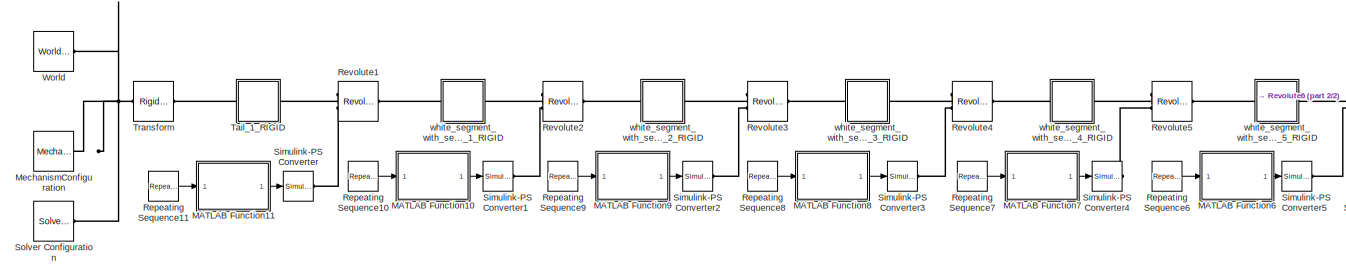
[diagram: root canvas - part 1/2, left side, full height]
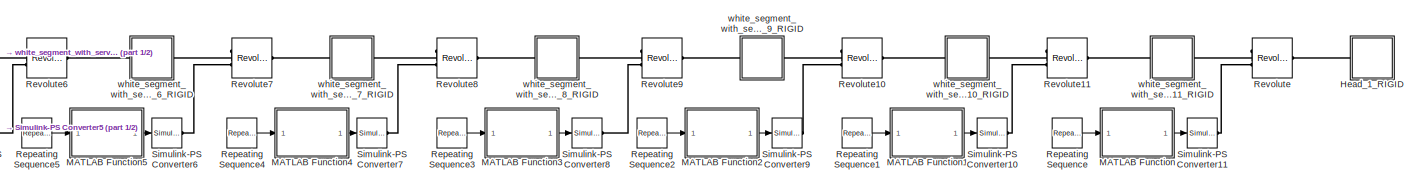
[diagram: root canvas - part 2/2, middle right region]
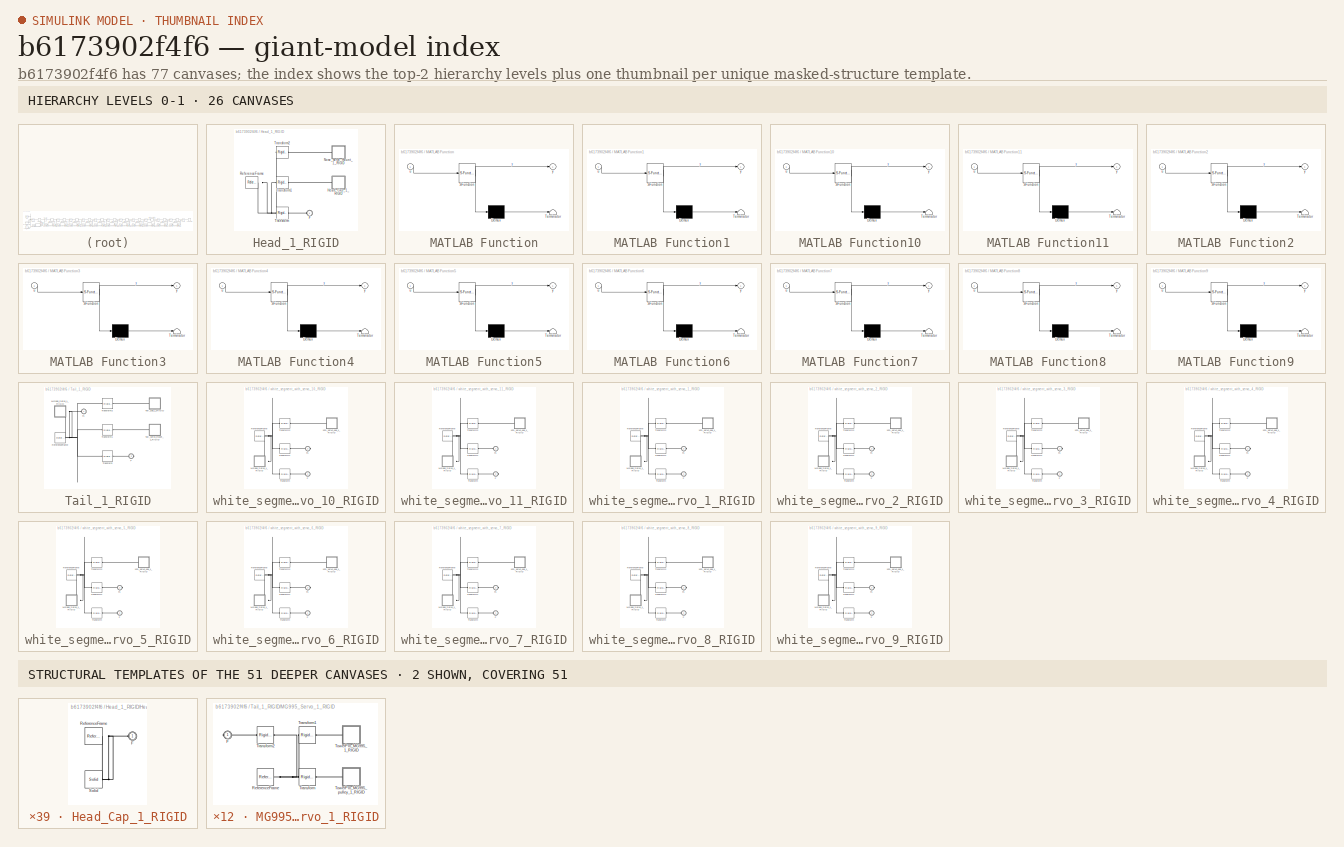
[diagram: thumbnail index - top-2 hierarchy levels (26 canvases) + 2 structural-template representatives of the remaining 51 canvases]
MODEL slx_b6173902f4f6
KIND model
CONFIG AbsTol = auto
CONFIG EnableMultiTasking = off
CONFIG FixedStep = auto
CONFIG MaxStep = auto
CONFIG MinStep = auto
CONFIG RelTol = 1e-3
CONFIG SampleTimeConstraint = Unconstrained
CONFIG Solver = VariableStepAuto
CONFIG SolverName = VariableStepAuto
CONFIG StartTime = 0.0
CONFIG StopTime = 10
WORKSPACE source: external: MATLAB File  (data not in archive)
BLOCK [SubSystem] Head_1_RIGID
  Ports = [0, 0, 0, 0, 0, 1]
  RequestExecContextInheritance = off
  Variant = off
BLOCK [PMIOPort] Head_1_RIGID/F
  Port = 1
  Side = Left
BLOCK [SubSystem] Head_1_RIGID/Head_Cap_1_RIGID
  Ports = [0, 0, 0, 0, 0, 1]
  RequestExecContextInheritance = off
  Variant = off
BLOCK [PMIOPort] Head_1_RIGID/Head_Cap_1_RIGID/F
  Port = 1
  Side = Left
BLOCK [Reference] Head_1_RIGID/Head_Cap_1_RIGID/ReferenceFrame  REF=sm_lib/Frames and
Transforms/Reference
Frame
  Ports = [0, 0, 0, 0, 0, 0, 1]
  SourceBlock = sm_lib/Frames and\nTransforms/Reference\nFrame
  SourceProductBaseCode = MS
  SourceProductName = Simscape Multibody
  SourceType = Reference\nFrame
BLOCK [Reference] Head_1_RIGID/Head_Cap_1_RIGID/Solid  REF=sm_lib/Body Elements/Solid
  Ports = [0, 0, 0, 0, 0, 0, 1]
  SourceBlock = sm_lib/Body Elements/Solid
  SourceProductBaseCode = MS
  SourceProductName = Simscape Multibody
  SourceType = Solid
BLOCK [SubSystem] Head_1_RIGID/Nose_servo_mount_1_RIGID
  Ports = [0, 0, 0, 0, 0, 1]
  RequestExecContextInheritance = off
  Variant = off
BLOCK [PMIOPort] Head_1_RIGID/Nose_servo_mount_1_RIGID/F
  Port = 1
  Side = Left
BLOCK [Reference] Head_1_RIGID/Nose_servo_mount_1_RIGID/ReferenceFrame  REF=sm_lib/Frames and
Transforms/Reference
Frame
  Ports = [0, 0, 0, 0, 0, 0, 1]
  SourceBlock = sm_lib/Frames and\nTransforms/Reference\nFrame
  SourceProductBaseCode = MS
  SourceProductName = Simscape Multibody
  SourceType = Reference\nFrame
BLOCK [Reference] Head_1_RIGID/Nose_servo_mount_1_RIGID/Solid  REF=sm_lib/Body Elements/Solid
  Ports = [0, 0, 0, 0, 0, 0, 1]
  SourceBlock = sm_lib/Body Elements/Solid
  SourceProductBaseCode = MS
  SourceProductName = Simscape Multibody
  SourceType = Solid
BLOCK [Reference] Head_1_RIGID/ReferenceFrame  REF=sm_lib/Frames and
Transforms/Reference
Frame
  Ports = [0, 0, 0, 0, 0, 0, 1]
  SourceBlock = sm_lib/Frames and\nTransforms/Reference\nFrame
  SourceProductBaseCode = MS
  SourceProductName = Simscape Multibody
  SourceType = Reference\nFrame
BLOCK [Reference] Head_1_RIGID/Transform  REF=sm_lib/Frames and
Transforms/Rigid
Transform
  Ports = [0, 0, 0, 0, 0, 1, 1]
  SourceBlock = sm_lib/Frames and\nTransforms/Rigid\nTransform
  SourceProductBaseCode = MS
  SourceProductName = Simscape Multibody
  SourceType = Rigid\nTransform
BLOCK [Reference] Head_1_RIGID/Transform1  REF=sm_lib/Frames and
Transforms/Rigid
Transform
  Ports = [0, 0, 0, 0, 0, 1, 1]
  SourceBlock = sm_lib/Frames and\nTransforms/Rigid\nTransform
  SourceProductBaseCode = MS
  SourceProductName = Simscape Multibody
  SourceType = Rigid\nTransform
BLOCK [Reference] Head_1_RIGID/Transform2  REF=sm_lib/Frames and
Transforms/Rigid
Transform
  Ports = [0, 0, 0, 0, 0, 1, 1]
  SourceBlock = sm_lib/Frames and\nTransforms/Rigid\nTransform
  SourceProductBaseCode = MS
  SourceProductName = Simscape Multibody
  SourceType = Rigid\nTransform
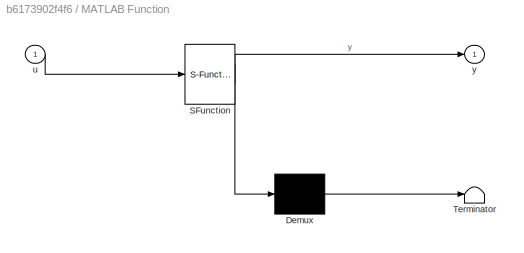
BLOCK [SubSystem] MATLAB Function
  ErrorFcn = Stateflow.Translate.translate
  PermitHierarchicalResolution = ExplicitOnly
  Ports = [1, 1]
  RequestExecContextInheritance = off
  SFBlockType = MATLAB Function
  TreatAsAtomicUnit = on
  Variant = off
BLOCK [Demux] MATLAB Function/ Demux 
  Outputs = 1
  Ports = [1, 1]
BLOCK [S-Function] MATLAB Function/ SFunction 
  EnableBusSupport = on
  FunctionName = sf_sfun
  PortCounts = [1 2]
  Ports = [1, 2]
  SFcnIsStateOwnerBlock = off
  SFunctionDeploymentMode = off
  Tag = Stateflow S-Function WhiteSnake 2
BLOCK [Terminator] MATLAB Function/ Terminator 
BLOCK [Inport] MATLAB Function/u
  IconDisplay = Port number
BLOCK [Outport] MATLAB Function/y
  IconDisplay = Port number
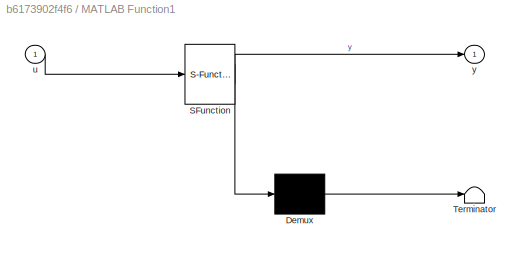
BLOCK [SubSystem] MATLAB Function1
  ErrorFcn = Stateflow.Translate.translate
  PermitHierarchicalResolution = ExplicitOnly
  Ports = [1, 1]
  RequestExecContextInheritance = off
  SFBlockType = MATLAB Function
  TreatAsAtomicUnit = on
  Variant = off
BLOCK [Demux] MATLAB Function1/ Demux 
  Outputs = 1
  Ports = [1, 1]
BLOCK [S-Function] MATLAB Function1/ SFunction 
  EnableBusSupport = on
  FunctionName = sf_sfun
  PortCounts = [1 2]
  Ports = [1, 2]
  SFcnIsStateOwnerBlock = off
  SFunctionDeploymentMode = off
  Tag = Stateflow S-Function WhiteSnake 1
BLOCK [Terminator] MATLAB Function1/ Terminator 
BLOCK [Inport] MATLAB Function1/u
  IconDisplay = Port number
BLOCK [Outport] MATLAB Function1/y
  IconDisplay = Port number
BLOCK [SubSystem] MATLAB Function10
  ErrorFcn = Stateflow.Translate.translate
  PermitHierarchicalResolution = ExplicitOnly
  Ports = [1, 1]
  RequestExecContextInheritance = off
  SFBlockType = MATLAB Function
  TreatAsAtomicUnit = on
  Variant = off
BLOCK [Demux] MATLAB Function10/ Demux 
  Outputs = 1
  Ports = [1, 1]
BLOCK [S-Function] MATLAB Function10/ SFunction 
  EnableBusSupport = on
  FunctionName = sf_sfun
  PortCounts = [1 2]
  Ports = [1, 2]
  SFcnIsStateOwnerBlock = off
  SFunctionDeploymentMode = off
  Tag = Stateflow S-Function WhiteSnake 11
BLOCK [Terminator] MATLAB Function10/ Terminator 
BLOCK [Inport] MATLAB Function10/u
  IconDisplay = Port number
BLOCK [Outport] MATLAB Function10/y
  IconDisplay = Port number
BLOCK [SubSystem] MATLAB Function11
  ErrorFcn = Stateflow.Translate.translate
  PermitHierarchicalResolution = ExplicitOnly
  Ports = [1, 1]
  RequestExecContextInheritance = off
  SFBlockType = MATLAB Function
  TreatAsAtomicUnit = on
  Variant = off
BLOCK [Demux] MATLAB Function11/ Demux 
  Outputs = 1
  Ports = [1, 1]
BLOCK [S-Function] MATLAB Function11/ SFunction 
  EnableBusSupport = on
  FunctionName = sf_sfun
  PortCounts = [1 2]
  Ports = [1, 2]
  SFcnIsStateOwnerBlock = off
  SFunctionDeploymentMode = off
  Tag = Stateflow S-Function WhiteSnake 12
BLOCK [Terminator] MATLAB Function11/ Terminator 
BLOCK [Inport] MATLAB Function11/u
  IconDisplay = Port number
BLOCK [Outport] MATLAB Function11/y
  IconDisplay = Port number
BLOCK [SubSystem] MATLAB Function2
  ErrorFcn = Stateflow.Translate.translate
  PermitHierarchicalResolution = ExplicitOnly
  Ports = [1, 1]
  RequestExecContextInheritance = off
  SFBlockType = MATLAB Function
  TreatAsAtomicUnit = on
  Variant = off
BLOCK [Demux] MATLAB Function2/ Demux 
  Outputs = 1
  Ports = [1, 1]
BLOCK [S-Function] MATLAB Function2/ SFunction 
  EnableBusSupport = on
  FunctionName = sf_sfun
  PortCounts = [1 2]
  Ports = [1, 2]
  SFcnIsStateOwnerBlock = off
  SFunctionDeploymentMode = off
  Tag = Stateflow S-Function WhiteSnake 3
BLOCK [Terminator] MATLAB Function2/ Terminator 
BLOCK [Inport] MATLAB Function2/u
  IconDisplay = Port number
BLOCK [Outport] MATLAB Function2/y
  IconDisplay = Port number
BLOCK [SubSystem] MATLAB Function3
  ErrorFcn = Stateflow.Translate.translate
  PermitHierarchicalResolution = ExplicitOnly
  Ports = [1, 1]
  RequestExecContextInheritance = off
  SFBlockType = MATLAB Function
  TreatAsAtomicUnit = on
  Variant = off
BLOCK [Demux] MATLAB Function3/ Demux 
  Outputs = 1
  Ports = [1, 1]
BLOCK [S-Function] MATLAB Function3/ SFunction 
  EnableBusSupport = on
  FunctionName = sf_sfun
  PortCounts = [1 2]
  Ports = [1, 2]
  SFcnIsStateOwnerBlock = off
  SFunctionDeploymentMode = off
  Tag = Stateflow S-Function WhiteSnake 4
BLOCK [Terminator] MATLAB Function3/ Terminator 
BLOCK [Inport] MATLAB Function3/u
  IconDisplay = Port number
BLOCK [Outport] MATLAB Function3/y
  IconDisplay = Port number
BLOCK [SubSystem] MATLAB Function4
  ErrorFcn = Stateflow.Translate.translate
  PermitHierarchicalResolution = ExplicitOnly
  Ports = [1, 1]
  RequestExecContextInheritance = off
  SFBlockType = MATLAB Function
  TreatAsAtomicUnit = on
  Variant = off
BLOCK [Demux] MATLAB Function4/ Demux 
  Outputs = 1
  Ports = [1, 1]
BLOCK [S-Function] MATLAB Function4/ SFunction 
  EnableBusSupport = on
  FunctionName = sf_sfun
  PortCounts = [1 2]
  Ports = [1, 2]
  SFcnIsStateOwnerBlock = off
  SFunctionDeploymentMode = off
  Tag = Stateflow S-Function WhiteSnake 5
BLOCK [Terminator] MATLAB Function4/ Terminator 
BLOCK [Inport] MATLAB Function4/u
  IconDisplay = Port number
BLOCK [Outport] MATLAB Function4/y
  IconDisplay = Port number
BLOCK [SubSystem] MATLAB Function5
  ErrorFcn = Stateflow.Translate.translate
  PermitHierarchicalResolution = ExplicitOnly
  Ports = [1, 1]
  RequestExecContextInheritance = off
  SFBlockType = MATLAB Function
  TreatAsAtomicUnit = on
  Variant = off
BLOCK [Demux] MATLAB Function5/ Demux 
  Outputs = 1
  Ports = [1, 1]
BLOCK [S-Function] MATLAB Function5/ SFunction 
  EnableBusSupport = on
  FunctionName = sf_sfun
  PortCounts = [1 2]
  Ports = [1, 2]
  SFcnIsStateOwnerBlock = off
  SFunctionDeploymentMode = off
  Tag = Stateflow S-Function WhiteSnake 6
BLOCK [Terminator] MATLAB Function5/ Terminator 
BLOCK [Inport] MATLAB Function5/u
  IconDisplay = Port number
BLOCK [Outport] MATLAB Function5/y
  IconDisplay = Port number
BLOCK [SubSystem] MATLAB Function6
  ErrorFcn = Stateflow.Translate.translate
  PermitHierarchicalResolution = ExplicitOnly
  Ports = [1, 1]
  RequestExecContextInheritance = off
  SFBlockType = MATLAB Function
  TreatAsAtomicUnit = on
  Variant = off
BLOCK [Demux] MATLAB Function6/ Demux 
  Outputs = 1
  Ports = [1, 1]
BLOCK [S-Function] MATLAB Function6/ SFunction 
  EnableBusSupport = on
  FunctionName = sf_sfun
  PortCounts = [1 2]
  Ports = [1, 2]
  SFcnIsStateOwnerBlock = off
  SFunctionDeploymentMode = off
  Tag = Stateflow S-Function WhiteSnake 7
BLOCK [Terminator] MATLAB Function6/ Terminator 
BLOCK [Inport] MATLAB Function6/u
  IconDisplay = Port number
BLOCK [Outport] MATLAB Function6/y
  IconDisplay = Port number
BLOCK [SubSystem] MATLAB Function7
  ErrorFcn = Stateflow.Translate.translate
  PermitHierarchicalResolution = ExplicitOnly
  Ports = [1, 1]
  RequestExecContextInheritance = off
  SFBlockType = MATLAB Function
  TreatAsAtomicUnit = on
  Variant = off
BLOCK [Demux] MATLAB Function7/ Demux 
  Outputs = 1
  Ports = [1, 1]
BLOCK [S-Function] MATLAB Function7/ SFunction 
  EnableBusSupport = on
  FunctionName = sf_sfun
  PortCounts = [1 2]
  Ports = [1, 2]
  SFcnIsStateOwnerBlock = off
  SFunctionDeploymentMode = off
  Tag = Stateflow S-Function WhiteSnake 8
BLOCK [Terminator] MATLAB Function7/ Terminator 
BLOCK [Inport] MATLAB Function7/u
  IconDisplay = Port number
BLOCK [Outport] MATLAB Function7/y
  IconDisplay = Port number
BLOCK [SubSystem] MATLAB Function8
  ErrorFcn = Stateflow.Translate.translate
  PermitHierarchicalResolution = ExplicitOnly
  Ports = [1, 1]
  RequestExecContextInheritance = off
  SFBlockType = MATLAB Function
  TreatAsAtomicUnit = on
  Variant = off
BLOCK [Demux] MATLAB Function8/ Demux 
  Outputs = 1
  Ports = [1, 1]
BLOCK [S-Function] MATLAB Function8/ SFunction 
  EnableBusSupport = on
  FunctionName = sf_sfun
  PortCounts = [1 2]
  Ports = [1, 2]
  SFcnIsStateOwnerBlock = off
  SFunctionDeploymentMode = off
  Tag = Stateflow S-Function WhiteSnake 9
BLOCK [Terminator] MATLAB Function8/ Terminator 
BLOCK [Inport] MATLAB Function8/u
  IconDisplay = Port number
BLOCK [Outport] MATLAB Function8/y
  IconDisplay = Port number
BLOCK [SubSystem] MATLAB Function9
  ErrorFcn = Stateflow.Translate.translate
  PermitHierarchicalResolution = ExplicitOnly
  Ports = [1, 1]
  RequestExecContextInheritance = off
  SFBlockType = MATLAB Function
  TreatAsAtomicUnit = on
  Variant = off
BLOCK [Demux] MATLAB Function9/ Demux 
  Outputs = 1
  Ports = [1, 1]
BLOCK [S-Function] MATLAB Function9/ SFunction 
  EnableBusSupport = on
  FunctionName = sf_sfun
  PortCounts = [1 2]
  Ports = [1, 2]
  SFcnIsStateOwnerBlock = off
  SFunctionDeploymentMode = off
  Tag = Stateflow S-Function WhiteSnake 10
BLOCK [Terminator] MATLAB Function9/ Terminator 
BLOCK [Inport] MATLAB Function9/u
  IconDisplay = Port number
BLOCK [Outport] MATLAB Function9/y
  IconDisplay = Port number
BLOCK [Reference] MechanismConfiguration  REF=sm_lib/Utilities/Mechanism
Configuration
  Ports = [0, 0, 0, 0, 0, 0, 1]
  SourceBlock = sm_lib/Utilities/Mechanism\nConfiguration
  SourceProductBaseCode = MS
  SourceProductName = Simscape Multibody
  SourceType = Mechanism\nConfiguration
BLOCK [Reference] Repeating Sequence  REF=simulink/Sources/Repeating
Sequence
  Ports = [0, 1]
  SourceBlock = simulink/Sources/Repeating\nSequence
  SourceProductBaseCode = SL
  SourceProductName = Simulink
  SourceType = Repeating table
BLOCK [Reference] Repeating Sequence1  REF=simulink/Sources/Repeating
Sequence
  Ports = [0, 1]
  SourceBlock = simulink/Sources/Repeating\nSequence
  SourceProductBaseCode = SL
  SourceProductName = Simulink
  SourceType = Repeating table
BLOCK [Reference] Repeating Sequence10  REF=simulink/Sources/Repeating
Sequence
  Ports = [0, 1]
  SourceBlock = simulink/Sources/Repeating\nSequence
  SourceProductBaseCode = SL
  SourceProductName = Simulink
  SourceType = Repeating table
BLOCK [Reference] Repeating Sequence11  REF=simulink/Sources/Repeating
Sequence
  Ports = [0, 1]
  SourceBlock = simulink/Sources/Repeating\nSequence
  SourceProductBaseCode = SL
  SourceProductName = Simulink
  SourceType = Repeating table
BLOCK [Reference] Repeating Sequence2  REF=simulink/Sources/Repeating
Sequence
  Ports = [0, 1]
  SourceBlock = simulink/Sources/Repeating\nSequence
  SourceProductBaseCode = SL
  SourceProductName = Simulink
  SourceType = Repeating table
BLOCK [Reference] Repeating Sequence3  REF=simulink/Sources/Repeating
Sequence
  Ports = [0, 1]
  SourceBlock = simulink/Sources/Repeating\nSequence
  SourceProductBaseCode = SL
  SourceProductName = Simulink
  SourceType = Repeating table
BLOCK [Reference] Repeating Sequence4  REF=simulink/Sources/Repeating
Sequence
  Ports = [0, 1]
  SourceBlock = simulink/Sources/Repeating\nSequence
  SourceProductBaseCode = SL
  SourceProductName = Simulink
  SourceType = Repeating table
BLOCK [Reference] Repeating Sequence5  REF=simulink/Sources/Repeating
Sequence
  Ports = [0, 1]
  SourceBlock = simulink/Sources/Repeating\nSequence
  SourceProductBaseCode = SL
  SourceProductName = Simulink
  SourceType = Repeating table
BLOCK [Reference] Repeating Sequence6  REF=simulink/Sources/Repeating
Sequence
  Ports = [0, 1]
  SourceBlock = simulink/Sources/Repeating\nSequence
  SourceProductBaseCode = SL
  SourceProductName = Simulink
  SourceType = Repeating table
BLOCK [Reference] Repeating Sequence7  REF=simulink/Sources/Repeating
Sequence
  Ports = [0, 1]
  SourceBlock = simulink/Sources/Repeating\nSequence
  SourceProductBaseCode = SL
  SourceProductName = Simulink
  SourceType = Repeating table
BLOCK [Reference] Repeating Sequence8  REF=simulink/Sources/Repeating
Sequence
  Ports = [0, 1]
  SourceBlock = simulink/Sources/Repeating\nSequence
  SourceProductBaseCode = SL
  SourceProductName = Simulink
  SourceType = Repeating table
BLOCK [Reference] Repeating Sequence9  REF=simulink/Sources/Repeating
Sequence
  Ports = [0, 1]
  SourceBlock = simulink/Sources/Repeating\nSequence
  SourceProductBaseCode = SL
  SourceProductName = Simulink
  SourceType = Repeating table
BLOCK [Reference] Revolute  REF=sm_lib/Joints/Revolute Joint
  Ports = [0, 0, 0, 0, 0, 2, 1]
  SourceBlock = sm_lib/Joints/Revolute Joint
  SourceProductBaseCode = MS
  SourceProductName = Simscape Multibody
  SourceType = Revolute Joint
BLOCK [Reference] Revolute1  REF=sm_lib/Joints/Revolute Joint
  Ports = [0, 0, 0, 0, 0, 2, 1]
  SourceBlock = sm_lib/Joints/Revolute Joint
  SourceProductBaseCode = MS
  SourceProductName = Simscape Multibody
  SourceType = Revolute Joint
BLOCK [Reference] Revolute10  REF=sm_lib/Joints/Revolute Joint
  Ports = [0, 0, 0, 0, 0, 2, 1]
  SourceBlock = sm_lib/Joints/Revolute Joint
  SourceProductBaseCode = MS
  SourceProductName = Simscape Multibody
  SourceType = Revolute Joint
BLOCK [Reference] Revolute11  REF=sm_lib/Joints/Revolute Joint
  Ports = [0, 0, 0, 0, 0, 2, 1]
  SourceBlock = sm_lib/Joints/Revolute Joint
  SourceProductBaseCode = MS
  SourceProductName = Simscape Multibody
  SourceType = Revolute Joint
BLOCK [Reference] Revolute2  REF=sm_lib/Joints/Revolute Joint
  Ports = [0, 0, 0, 0, 0, 2, 1]
  SourceBlock = sm_lib/Joints/Revolute Joint
  SourceProductBaseCode = MS
  SourceProductName = Simscape Multibody
  SourceType = Revolute Joint
BLOCK [Reference] Revolute3  REF=sm_lib/Joints/Revolute Joint
  Ports = [0, 0, 0, 0, 0, 2, 1]
  SourceBlock = sm_lib/Joints/Revolute Joint
  SourceProductBaseCode = MS
  SourceProductName = Simscape Multibody
  SourceType = Revolute Joint
BLOCK [Reference] Revolute4  REF=sm_lib/Joints/Revolute Joint
  Ports = [0, 0, 0, 0, 0, 2, 1]
  SourceBlock = sm_lib/Joints/Revolute Joint
  SourceProductBaseCode = MS
  SourceProductName = Simscape Multibody
  SourceType = Revolute Joint
BLOCK [Reference] Revolute5  REF=sm_lib/Joints/Revolute Joint
  Ports = [0, 0, 0, 0, 0, 2, 1]
  SourceBlock = sm_lib/Joints/Revolute Joint
  SourceProductBaseCode = MS
  SourceProductName = Simscape Multibody
  SourceType = Revolute Joint
BLOCK [Reference] Revolute6  REF=sm_lib/Joints/Revolute Joint
  Ports = [0, 0, 0, 0, 0, 2, 1]
  SourceBlock = sm_lib/Joints/Revolute Joint
  SourceProductBaseCode = MS
  SourceProductName = Simscape Multibody
  SourceType = Revolute Joint
BLOCK [Reference] Revolute7  REF=sm_lib/Joints/Revolute Joint
  Ports = [0, 0, 0, 0, 0, 2, 1]
  SourceBlock = sm_lib/Joints/Revolute Joint
  SourceProductBaseCode = MS
  SourceProductName = Simscape Multibody
  SourceType = Revolute Joint
BLOCK [Reference] Revolute8  REF=sm_lib/Joints/Revolute Joint
  Ports = [0, 0, 0, 0, 0, 2, 1]
  SourceBlock = sm_lib/Joints/Revolute Joint
  SourceProductBaseCode = MS
  SourceProductName = Simscape Multibody
  SourceType = Revolute Joint
BLOCK [Reference] Revolute9  REF=sm_lib/Joints/Revolute Joint
  Ports = [0, 0, 0, 0, 0, 2, 1]
  SourceBlock = sm_lib/Joints/Revolute Joint
  SourceProductBaseCode = MS
  SourceProductName = Simscape Multibody
  SourceType = Revolute Joint
BLOCK [Reference] Simulink-PS Converter  REF=nesl_utility/Simulink-PS
Converter
  Ports = [1, 0, 0, 0, 0, 0, 1]
  SourceBlock = nesl_utility/Simulink-PS\nConverter
  SourceProductBaseCode = SS
  SourceProductName = Simscape
  SourceType = Simulink-PS\nConverter
BLOCK [Reference] Simulink-PS Converter1  REF=nesl_utility/Simulink-PS
Converter
  Ports = [1, 0, 0, 0, 0, 0, 1]
  SourceBlock = nesl_utility/Simulink-PS\nConverter
  SourceProductBaseCode = SS
  SourceProductName = Simscape
  SourceType = Simulink-PS\nConverter
BLOCK [Reference] Simulink-PS Converter10  REF=nesl_utility/Simulink-PS
Converter
  Ports = [1, 0, 0, 0, 0, 0, 1]
  SourceBlock = nesl_utility/Simulink-PS\nConverter
  SourceProductBaseCode = SS
  SourceProductName = Simscape
  SourceType = Simulink-PS\nConverter
BLOCK [Reference] Simulink-PS Converter11  REF=nesl_utility/Simulink-PS
Converter
  Ports = [1, 0, 0, 0, 0, 0, 1]
  SourceBlock = nesl_utility/Simulink-PS\nConverter
  SourceProductBaseCode = SS
  SourceProductName = Simscape
  SourceType = Simulink-PS\nConverter
BLOCK [Reference] Simulink-PS Converter2  REF=nesl_utility/Simulink-PS
Converter
  Ports = [1, 0, 0, 0, 0, 0, 1]
  SourceBlock = nesl_utility/Simulink-PS\nConverter
  SourceProductBaseCode = SS
  SourceProductName = Simscape
  SourceType = Simulink-PS\nConverter
BLOCK [Reference] Simulink-PS Converter3  REF=nesl_utility/Simulink-PS
Converter
  Ports = [1, 0, 0, 0, 0, 0, 1]
  SourceBlock = nesl_utility/Simulink-PS\nConverter
  SourceProductBaseCode = SS
  SourceProductName = Simscape
  SourceType = Simulink-PS\nConverter
BLOCK [Reference] Simulink-PS Converter4  REF=nesl_utility/Simulink-PS
Converter
  Ports = [1, 0, 0, 0, 0, 0, 1]
  SourceBlock = nesl_utility/Simulink-PS\nConverter
  SourceProductBaseCode = SS
  SourceProductName = Simscape
  SourceType = Simulink-PS\nConverter
BLOCK [Reference] Simulink-PS Converter5  REF=nesl_utility/Simulink-PS
Converter
  Ports = [1, 0, 0, 0, 0, 0, 1]
  SourceBlock = nesl_utility/Simulink-PS\nConverter
  SourceProductBaseCode = SS
  SourceProductName = Simscape
  SourceType = Simulink-PS\nConverter
BLOCK [Reference] Simulink-PS Converter6  REF=nesl_utility/Simulink-PS
Converter
  Ports = [1, 0, 0, 0, 0, 0, 1]
  SourceBlock = nesl_utility/Simulink-PS\nConverter
  SourceProductBaseCode = SS
  SourceProductName = Simscape
  SourceType = Simulink-PS\nConverter
BLOCK [Reference] Simulink-PS Converter7  REF=nesl_utility/Simulink-PS
Converter
  Ports = [1, 0, 0, 0, 0, 0, 1]
  SourceBlock = nesl_utility/Simulink-PS\nConverter
  SourceProductBaseCode = SS
  SourceProductName = Simscape
  SourceType = Simulink-PS\nConverter
BLOCK [Reference] Simulink-PS Converter8  REF=nesl_utility/Simulink-PS
Converter
  Ports = [1, 0, 0, 0, 0, 0, 1]
  SourceBlock = nesl_utility/Simulink-PS\nConverter
  SourceProductBaseCode = SS
  SourceProductName = Simscape
  SourceType = Simulink-PS\nConverter
BLOCK [Reference] Simulink-PS Converter9  REF=nesl_utility/Simulink-PS
Converter
  Ports = [1, 0, 0, 0, 0, 0, 1]
  SourceBlock = nesl_utility/Simulink-PS\nConverter
  SourceProductBaseCode = SS
  SourceProductName = Simscape
  SourceType = Simulink-PS\nConverter
BLOCK [Reference] Solver Configuration  REF=nesl_utility/Solver
Configuration
  Ports = [0, 0, 0, 0, 0, 0, 1]
  SourceBlock = nesl_utility/Solver\nConfiguration
  SourceProductBaseCode = SS
  SourceProductName = Simscape
  SourceType = Solver\nConfiguration
BLOCK [SubSystem] Tail_1_RIGID
  Ports = [0, 0, 0, 0, 0, 1, 1]
  RequestExecContextInheritance = off
  Variant = off
BLOCK [PMIOPort] Tail_1_RIGID/F
  Port = 2
  Side = Right
BLOCK [PMIOPort] Tail_1_RIGID/F1
  Port = 1
  Side = Left
BLOCK [SubSystem] Tail_1_RIGID/MG995_Servo_1_RIGID
  Ports = [0, 0, 0, 0, 0, 0, 1]
  RequestExecContextInheritance = off
  Variant = off
BLOCK [PMIOPort] Tail_1_RIGID/MG995_Servo_1_RIGID/F
  Port = 1
  Side = Right
BLOCK [Reference] Tail_1_RIGID/MG995_Servo_1_RIGID/ReferenceFrame  REF=sm_lib/Frames and
Transforms/Reference
Frame
  Ports = [0, 0, 0, 0, 0, 0, 1]
  SourceBlock = sm_lib/Frames and\nTransforms/Reference\nFrame
  SourceProductBaseCode = MS
  SourceProductName = Simscape Multibody
  SourceType = Reference\nFrame
BLOCK [SubSystem] Tail_1_RIGID/MG995_Servo_1_RIGID/TowerPro_MG995_1_RIGID
  Ports = [0, 0, 0, 0, 0, 1]
  RequestExecContextInheritance = off
  Variant = off
BLOCK [PMIOPort] Tail_1_RIGID/MG995_Servo_1_RIGID/TowerPro_MG995_1_RIGID/F
  Port = 1
  Side = Left
BLOCK [Reference] Tail_1_RIGID/MG995_Servo_1_RIGID/TowerPro_MG995_1_RIGID/ReferenceFrame  REF=sm_lib/Frames and
Transforms/Reference
Frame
  Ports = [0, 0, 0, 0, 0, 0, 1]
  SourceBlock = sm_lib/Frames and\nTransforms/Reference\nFrame
  SourceProductBaseCode = MS
  SourceProductName = Simscape Multibody
  SourceType = Reference\nFrame
BLOCK [Reference] Tail_1_RIGID/MG995_Servo_1_RIGID/TowerPro_MG995_1_RIGID/Solid  REF=sm_lib/Body Elements/Solid
  Ports = [0, 0, 0, 0, 0, 0, 1]
  SourceBlock = sm_lib/Body Elements/Solid
  SourceProductBaseCode = MS
  SourceProductName = Simscape Multibody
  SourceType = Solid
BLOCK [SubSystem] Tail_1_RIGID/MG995_Servo_1_RIGID/TowerPro_MG995_pulley_1_RIGID
  Ports = [0, 0, 0, 0, 0, 1]
  RequestExecContextInheritance = off
  Variant = off
BLOCK [PMIOPort] Tail_1_RIGID/MG995_Servo_1_RIGID/TowerPro_MG995_pulley_1_RIGID/F
  Port = 1
  Side = Left
BLOCK [Reference] Tail_1_RIGID/MG995_Servo_1_RIGID/TowerPro_MG995_pulley_1_RIGID/ReferenceFrame  REF=sm_lib/Frames and
Transforms/Reference
Frame
  Ports = [0, 0, 0, 0, 0, 0, 1]
  SourceBlock = sm_lib/Frames and\nTransforms/Reference\nFrame
  SourceProductBaseCode = MS
  SourceProductName = Simscape Multibody
  SourceType = Reference\nFrame
BLOCK [Reference] Tail_1_RIGID/MG995_Servo_1_RIGID/TowerPro_MG995_pulley_1_RIGID/Solid  REF=sm_lib/Body Elements/Solid
  Ports = [0, 0, 0, 0, 0, 0, 1]
  SourceBlock = sm_lib/Body Elements/Solid
  SourceProductBaseCode = MS
  SourceProductName = Simscape Multibody
  SourceType = Solid
BLOCK [Reference] Tail_1_RIGID/MG995_Servo_1_RIGID/Transform  REF=sm_lib/Frames and
Transforms/Rigid
Transform
  Ports = [0, 0, 0, 0, 0, 1, 1]
  SourceBlock = sm_lib/Frames and\nTransforms/Rigid\nTransform
  SourceProductBaseCode = MS
  SourceProductName = Simscape Multibody
  SourceType = Rigid\nTransform
BLOCK [Reference] Tail_1_RIGID/MG995_Servo_1_RIGID/Transform1  REF=sm_lib/Frames and
Transforms/Rigid
Transform
  Ports = [0, 0, 0, 0, 0, 1, 1]
  SourceBlock = sm_lib/Frames and\nTransforms/Rigid\nTransform
  SourceProductBaseCode = MS
  SourceProductName = Simscape Multibody
  SourceType = Rigid\nTransform
BLOCK [Reference] Tail_1_RIGID/MG995_Servo_1_RIGID/Transform2  REF=sm_lib/Frames and
Transforms/Rigid
Transform
  Ports = [0, 0, 0, 0, 0, 1, 1]
  SourceBlock = sm_lib/Frames and\nTransforms/Rigid\nTransform
  SourceProductBaseCode = MS
  SourceProductName = Simscape Multibody
  SourceType = Rigid\nTransform
BLOCK [Reference] Tail_1_RIGID/ReferenceFrame  REF=sm_lib/Frames and
Transforms/Reference
Frame
  Ports = [0, 0, 0, 0, 0, 0, 1]
  SourceBlock = sm_lib/Frames and\nTransforms/Reference\nFrame
  SourceProductBaseCode = MS
  SourceProductName = Simscape Multibody
  SourceType = Reference\nFrame
BLOCK [SubSystem] Tail_1_RIGID/Tail_cap_1_RIGID
  Ports = [0, 0, 0, 0, 0, 1]
  RequestExecContextInheritance = off
  Variant = off
BLOCK [PMIOPort] Tail_1_RIGID/Tail_cap_1_RIGID/F
  Port = 1
  Side = Left
BLOCK [Reference] Tail_1_RIGID/Tail_cap_1_RIGID/ReferenceFrame  REF=sm_lib/Frames and
Transforms/Reference
Frame
  Ports = [0, 0, 0, 0, 0, 0, 1]
  SourceBlock = sm_lib/Frames and\nTransforms/Reference\nFrame
  SourceProductBaseCode = MS
  SourceProductName = Simscape Multibody
  SourceType = Reference\nFrame
BLOCK [Reference] Tail_1_RIGID/Tail_cap_1_RIGID/Solid  REF=sm_lib/Body Elements/Solid
  Ports = [0, 0, 0, 0, 0, 0, 1]
  SourceBlock = sm_lib/Body Elements/Solid
  SourceProductBaseCode = MS
  SourceProductName = Simscape Multibody
  SourceType = Solid
BLOCK [SubSystem] Tail_1_RIGID/Tail_servo_mount_1_RIGID
  Ports = [0, 0, 0, 0, 0, 1]
  RequestExecContextInheritance = off
  Variant = off
BLOCK [PMIOPort] Tail_1_RIGID/Tail_servo_mount_1_RIGID/F
  Port = 1
  Side = Left
BLOCK [Reference] Tail_1_RIGID/Tail_servo_mount_1_RIGID/ReferenceFrame  REF=sm_lib/Frames and
Transforms/Reference
Frame
  Ports = [0, 0, 0, 0, 0, 0, 1]
  SourceBlock = sm_lib/Frames and\nTransforms/Reference\nFrame
  SourceProductBaseCode = MS
  SourceProductName = Simscape Multibody
  SourceType = Reference\nFrame
BLOCK [Reference] Tail_1_RIGID/Tail_servo_mount_1_RIGID/Solid  REF=sm_lib/Body Elements/Solid
  Ports = [0, 0, 0, 0, 0, 0, 1]
  SourceBlock = sm_lib/Body Elements/Solid
  SourceProductBaseCode = MS
  SourceProductName = Simscape Multibody
  SourceType = Solid
BLOCK [Reference] Tail_1_RIGID/Transform  REF=sm_lib/Frames and
Transforms/Rigid
Transform
  Ports = [0, 0, 0, 0, 0, 1, 1]
  SourceBlock = sm_lib/Frames and\nTransforms/Rigid\nTransform
  SourceProductBaseCode = MS
  SourceProductName = Simscape Multibody
  SourceType = Rigid\nTransform
BLOCK [Reference] Tail_1_RIGID/Transform1  REF=sm_lib/Frames and
Transforms/Rigid
Transform
  Ports = [0, 0, 0, 0, 0, 1, 1]
  SourceBlock = sm_lib/Frames and\nTransforms/Rigid\nTransform
  SourceProductBaseCode = MS
  SourceProductName = Simscape Multibody
  SourceType = Rigid\nTransform
BLOCK [Reference] Tail_1_RIGID/Transform2  REF=sm_lib/Frames and
Transforms/Rigid
Transform
  Ports = [0, 0, 0, 0, 0, 1, 1]
  SourceBlock = sm_lib/Frames and\nTransforms/Rigid\nTransform
  SourceProductBaseCode = MS
  SourceProductName = Simscape Multibody
  SourceType = Rigid\nTransform
BLOCK [Reference] Transform  REF=sm_lib/Frames and
Transforms/Rigid
Transform
  Ports = [0, 0, 0, 0, 0, 1, 1]
  SourceBlock = sm_lib/Frames and\nTransforms/Rigid\nTransform
  SourceProductBaseCode = MS
  SourceProductName = Simscape Multibody
  SourceType = Rigid\nTransform
BLOCK [Reference] World  REF=sm_lib/Frames and
Transforms/World Frame
  Ports = [0, 0, 0, 0, 0, 0, 1]
  SourceBlock = sm_lib/Frames and\nTransforms/World Frame
  SourceProductBaseCode = MS
  SourceProductName = Simscape Multibody
  SourceType = World Frame
BLOCK [SubSystem] white_segment_with_servo_10_RIGID
  Ports = [0, 0, 0, 0, 0, 1, 1]
  RequestExecContextInheritance = off
  Variant = off
BLOCK [PMIOPort] white_segment_with_servo_10_RIGID/F
  Port = 1
  Side = Left
BLOCK [PMIOPort] white_segment_with_servo_10_RIGID/F1
  Port = 2
  Side = Right
BLOCK [SubSystem] white_segment_with_servo_10_RIGID/MG995_Servo_1_RIGID
  Ports = [0, 0, 0, 0, 0, 0, 1]
  RequestExecContextInheritance = off
  Variant = off
BLOCK [PMIOPort] white_segment_with_servo_10_RIGID/MG995_Servo_1_RIGID/F
  Port = 1
  Side = Right
BLOCK [Reference] white_segment_with_servo_10_RIGID/MG995_Servo_1_RIGID/ReferenceFrame  REF=sm_lib/Frames and
Transforms/Reference
Frame
  Ports = [0, 0, 0, 0, 0, 0, 1]
  SourceBlock = sm_lib/Frames and\nTransforms/Reference\nFrame
  SourceProductBaseCode = MS
  SourceProductName = Simscape Multibody
  SourceType = Reference\nFrame
BLOCK [SubSystem] white_segment_with_servo_10_RIGID/MG995_Servo_1_RIGID/TowerPro_MG995_1_RIGID
  Ports = [0, 0, 0, 0, 0, 1]
  RequestExecContextInheritance = off
  Variant = off
BLOCK [PMIOPort] white_segment_with_servo_10_RIGID/MG995_Servo_1_RIGID/TowerPro_MG995_1_RIGID/F
  Port = 1
  Side = Left
BLOCK [Reference] white_segment_with_servo_10_RIGID/MG995_Servo_1_RIGID/TowerPro_MG995_1_RIGID/ReferenceFrame  REF=sm_lib/Frames and
Transforms/Reference
Frame
  Ports = [0, 0, 0, 0, 0, 0, 1]
  SourceBlock = sm_lib/Frames and\nTransforms/Reference\nFrame
  SourceProductBaseCode = MS
  SourceProductName = Simscape Multibody
  SourceType = Reference\nFrame
BLOCK [Reference] white_segment_with_servo_10_RIGID/MG995_Servo_1_RIGID/TowerPro_MG995_1_RIGID/Solid  REF=sm_lib/Body Elements/Solid
  Ports = [0, 0, 0, 0, 0, 0, 1]
  SourceBlock = sm_lib/Body Elements/Solid
  SourceProductBaseCode = MS
  SourceProductName = Simscape Multibody
  SourceType = Solid
BLOCK [SubSystem] white_segment_with_servo_10_RIGID/MG995_Servo_1_RIGID/TowerPro_MG995_pulley_1_RIGID
  Ports = [0, 0, 0, 0, 0, 1]
  RequestExecContextInheritance = off
  Variant = off
BLOCK [PMIOPort] white_segment_with_servo_10_RIGID/MG995_Servo_1_RIGID/TowerPro_MG995_pulley_1_RIGID/F
  Port = 1
  Side = Left
BLOCK [Reference] white_segment_with_servo_10_RIGID/MG995_Servo_1_RIGID/TowerPro_MG995_pulley_1_RIGID/ReferenceFrame  REF=sm_lib/Frames and
Transforms/Reference
Frame
  Ports = [0, 0, 0, 0, 0, 0, 1]
  SourceBlock = sm_lib/Frames and\nTransforms/Reference\nFrame
  SourceProductBaseCode = MS
  SourceProductName = Simscape Multibody
  SourceType = Reference\nFrame
BLOCK [Reference] white_segment_with_servo_10_RIGID/MG995_Servo_1_RIGID/TowerPro_MG995_pulley_1_RIGID/Solid  REF=sm_lib/Body Elements/Solid
  Ports = [0, 0, 0, 0, 0, 0, 1]
  SourceBlock = sm_lib/Body Elements/Solid
  SourceProductBaseCode = MS
  SourceProductName = Simscape Multibody
  SourceType = Solid
BLOCK [Reference] white_segment_with_servo_10_RIGID/MG995_Servo_1_RIGID/Transform  REF=sm_lib/Frames and
Transforms/Rigid
Transform
  Ports = [0, 0, 0, 0, 0, 1, 1]
  SourceBlock = sm_lib/Frames and\nTransforms/Rigid\nTransform
  SourceProductBaseCode = MS
  SourceProductName = Simscape Multibody
  SourceType = Rigid\nTransform
BLOCK [Reference] white_segment_with_servo_10_RIGID/MG995_Servo_1_RIGID/Transform1  REF=sm_lib/Frames and
Transforms/Rigid
Transform
  Ports = [0, 0, 0, 0, 0, 1, 1]
  SourceBlock = sm_lib/Frames and\nTransforms/Rigid\nTransform
  SourceProductBaseCode = MS
  SourceProductName = Simscape Multibody
  SourceType = Rigid\nTransform
BLOCK [Reference] white_segment_with_servo_10_RIGID/MG995_Servo_1_RIGID/Transform2  REF=sm_lib/Frames and
Transforms/Rigid
Transform
  Ports = [0, 0, 0, 0, 0, 1, 1]
  SourceBlock = sm_lib/Frames and\nTransforms/Rigid\nTransform
  SourceProductBaseCode = MS
  SourceProductName = Simscape Multibody
  SourceType = Rigid\nTransform
BLOCK [Reference] white_segment_with_servo_10_RIGID/ReferenceFrame  REF=sm_lib/Frames and
Transforms/Reference
Frame
  Ports = [0, 0, 0, 0, 0, 0, 1]
  SourceBlock = sm_lib/Frames and\nTransforms/Reference\nFrame
  SourceProductBaseCode = MS
  SourceProductName = Simscape Multibody
  SourceType = Reference\nFrame
BLOCK [Reference] white_segment_with_servo_10_RIGID/Transform  REF=sm_lib/Frames and
Transforms/Rigid
Transform
  Ports = [0, 0, 0, 0, 0, 1, 1]
  SourceBlock = sm_lib/Frames and\nTransforms/Rigid\nTransform
  SourceProductBaseCode = MS
  SourceProductName = Simscape Multibody
  SourceType = Rigid\nTransform
BLOCK [Reference] white_segment_with_servo_10_RIGID/Transform1  REF=sm_lib/Frames and
Transforms/Rigid
Transform
  Ports = [0, 0, 0, 0, 0, 1, 1]
  SourceBlock = sm_lib/Frames and\nTransforms/Rigid\nTransform
  SourceProductBaseCode = MS
  SourceProductName = Simscape Multibody
  SourceType = Rigid\nTransform
BLOCK [Reference] white_segment_with_servo_10_RIGID/Transform2  REF=sm_lib/Frames and
Transforms/Rigid
Transform
  Ports = [0, 0, 0, 0, 0, 1, 1]
  SourceBlock = sm_lib/Frames and\nTransforms/Rigid\nTransform
  SourceProductBaseCode = MS
  SourceProductName = Simscape Multibody
  SourceType = Rigid\nTransform
BLOCK [SubSystem] white_segment_with_servo_10_RIGID/x2D_servo_seg_1_RIGID
  Ports = [0, 0, 0, 0, 0, 1]
  RequestExecContextInheritance = off
  Variant = off
BLOCK [PMIOPort] white_segment_with_servo_10_RIGID/x2D_servo_seg_1_RIGID/F
  Port = 1
  Side = Left
BLOCK [Reference] white_segment_with_servo_10_RIGID/x2D_servo_seg_1_RIGID/ReferenceFrame  REF=sm_lib/Frames and
Transforms/Reference
Frame
  Ports = [0, 0, 0, 0, 0, 0, 1]
  SourceBlock = sm_lib/Frames and\nTransforms/Reference\nFrame
  SourceProductBaseCode = MS
  SourceProductName = Simscape Multibody
  SourceType = Reference\nFrame
BLOCK [Reference] white_segment_with_servo_10_RIGID/x2D_servo_seg_1_RIGID/Solid  REF=sm_lib/Body Elements/Solid
  Ports = [0, 0, 0, 0, 0, 0, 1]
  SourceBlock = sm_lib/Body Elements/Solid
  SourceProductBaseCode = MS
  SourceProductName = Simscape Multibody
  SourceType = Solid
BLOCK [SubSystem] white_segment_with_servo_11_RIGID
  Ports = [0, 0, 0, 0, 0, 1, 1]
  RequestExecContextInheritance = off
  Variant = off
BLOCK [PMIOPort] white_segment_with_servo_11_RIGID/F
  Port = 2
  Side = Right
BLOCK [PMIOPort] white_segment_with_servo_11_RIGID/F1
  Port = 1
  Side = Left
BLOCK [SubSystem] white_segment_with_servo_11_RIGID/MG995_Servo_1_RIGID
  Ports = [0, 0, 0, 0, 0, 0, 1]
  RequestExecContextInheritance = off
  Variant = off
BLOCK [PMIOPort] white_segment_with_servo_11_RIGID/MG995_Servo_1_RIGID/F
  Port = 1
  Side = Right
BLOCK [Reference] white_segment_with_servo_11_RIGID/MG995_Servo_1_RIGID/ReferenceFrame  REF=sm_lib/Frames and
Transforms/Reference
Frame
  Ports = [0, 0, 0, 0, 0, 0, 1]
  SourceBlock = sm_lib/Frames and\nTransforms/Reference\nFrame
  SourceProductBaseCode = MS
  SourceProductName = Simscape Multibody
  SourceType = Reference\nFrame
BLOCK [SubSystem] white_segment_with_servo_11_RIGID/MG995_Servo_1_RIGID/TowerPro_MG995_1_RIGID
  Ports = [0, 0, 0, 0, 0, 1]
  RequestExecContextInheritance = off
  Variant = off
BLOCK [PMIOPort] white_segment_with_servo_11_RIGID/MG995_Servo_1_RIGID/TowerPro_MG995_1_RIGID/F
  Port = 1
  Side = Left
BLOCK [Reference] white_segment_with_servo_11_RIGID/MG995_Servo_1_RIGID/TowerPro_MG995_1_RIGID/ReferenceFrame  REF=sm_lib/Frames and
Transforms/Reference
Frame
  Ports = [0, 0, 0, 0, 0, 0, 1]
  SourceBlock = sm_lib/Frames and\nTransforms/Reference\nFrame
  SourceProductBaseCode = MS
  SourceProductName = Simscape Multibody
  SourceType = Reference\nFrame
BLOCK [Reference] white_segment_with_servo_11_RIGID/MG995_Servo_1_RIGID/TowerPro_MG995_1_RIGID/Solid  REF=sm_lib/Body Elements/Solid
  Ports = [0, 0, 0, 0, 0, 0, 1]
  SourceBlock = sm_lib/Body Elements/Solid
  SourceProductBaseCode = MS
  SourceProductName = Simscape Multibody
  SourceType = Solid
BLOCK [SubSystem] white_segment_with_servo_11_RIGID/MG995_Servo_1_RIGID/TowerPro_MG995_pulley_1_RIGID
  Ports = [0, 0, 0, 0, 0, 1]
  RequestExecContextInheritance = off
  Variant = off
BLOCK [PMIOPort] white_segment_with_servo_11_RIGID/MG995_Servo_1_RIGID/TowerPro_MG995_pulley_1_RIGID/F
  Port = 1
  Side = Left
BLOCK [Reference] white_segment_with_servo_11_RIGID/MG995_Servo_1_RIGID/TowerPro_MG995_pulley_1_RIGID/ReferenceFrame  REF=sm_lib/Frames and
Transforms/Reference
Frame
  Ports = [0, 0, 0, 0, 0, 0, 1]
  SourceBlock = sm_lib/Frames and\nTransforms/Reference\nFrame
  SourceProductBaseCode = MS
  SourceProductName = Simscape Multibody
  SourceType = Reference\nFrame
BLOCK [Reference] white_segment_with_servo_11_RIGID/MG995_Servo_1_RIGID/TowerPro_MG995_pulley_1_RIGID/Solid  REF=sm_lib/Body Elements/Solid
  Ports = [0, 0, 0, 0, 0, 0, 1]
  SourceBlock = sm_lib/Body Elements/Solid
  SourceProductBaseCode = MS
  SourceProductName = Simscape Multibody
  SourceType = Solid
BLOCK [Reference] white_segment_with_servo_11_RIGID/MG995_Servo_1_RIGID/Transform  REF=sm_lib/Frames and
Transforms/Rigid
Transform
  Ports = [0, 0, 0, 0, 0, 1, 1]
  SourceBlock = sm_lib/Frames and\nTransforms/Rigid\nTransform
  SourceProductBaseCode = MS
  SourceProductName = Simscape Multibody
  SourceType = Rigid\nTransform
BLOCK [Reference] white_segment_with_servo_11_RIGID/MG995_Servo_1_RIGID/Transform1  REF=sm_lib/Frames and
Transforms/Rigid
Transform
  Ports = [0, 0, 0, 0, 0, 1, 1]
  SourceBlock = sm_lib/Frames and\nTransforms/Rigid\nTransform
  SourceProductBaseCode = MS
  SourceProductName = Simscape Multibody
  SourceType = Rigid\nTransform
BLOCK [Reference] white_segment_with_servo_11_RIGID/MG995_Servo_1_RIGID/Transform2  REF=sm_lib/Frames and
Transforms/Rigid
Transform
  Ports = [0, 0, 0, 0, 0, 1, 1]
  SourceBlock = sm_lib/Frames and\nTransforms/Rigid\nTransform
  SourceProductBaseCode = MS
  SourceProductName = Simscape Multibody
  SourceType = Rigid\nTransform
BLOCK [Reference] white_segment_with_servo_11_RIGID/ReferenceFrame  REF=sm_lib/Frames and
Transforms/Reference
Frame
  Ports = [0, 0, 0, 0, 0, 0, 1]
  SourceBlock = sm_lib/Frames and\nTransforms/Reference\nFrame
  SourceProductBaseCode = MS
  SourceProductName = Simscape Multibody
  SourceType = Reference\nFrame
BLOCK [Reference] white_segment_with_servo_11_RIGID/Transform  REF=sm_lib/Frames and
Transforms/Rigid
Transform
  Ports = [0, 0, 0, 0, 0, 1, 1]
  SourceBlock = sm_lib/Frames and\nTransforms/Rigid\nTransform
  SourceProductBaseCode = MS
  SourceProductName = Simscape Multibody
  SourceType = Rigid\nTransform
BLOCK [Reference] white_segment_with_servo_11_RIGID/Transform1  REF=sm_lib/Frames and
Transforms/Rigid
Transform
  Ports = [0, 0, 0, 0, 0, 1, 1]
  SourceBlock = sm_lib/Frames and\nTransforms/Rigid\nTransform
  SourceProductBaseCode = MS
  SourceProductName = Simscape Multibody
  SourceType = Rigid\nTransform
BLOCK [Reference] white_segment_with_servo_11_RIGID/Transform2  REF=sm_lib/Frames and
Transforms/Rigid
Transform
  Ports = [0, 0, 0, 0, 0, 1, 1]
  SourceBlock = sm_lib/Frames and\nTransforms/Rigid\nTransform
  SourceProductBaseCode = MS
  SourceProductName = Simscape Multibody
  SourceType = Rigid\nTransform
BLOCK [SubSystem] white_segment_with_servo_11_RIGID/x2D_servo_seg_1_RIGID
  Ports = [0, 0, 0, 0, 0, 1]
  RequestExecContextInheritance = off
  Variant = off
BLOCK [PMIOPort] white_segment_with_servo_11_RIGID/x2D_servo_seg_1_RIGID/F
  Port = 1
  Side = Left
BLOCK [Reference] white_segment_with_servo_11_RIGID/x2D_servo_seg_1_RIGID/ReferenceFrame  REF=sm_lib/Frames and
Transforms/Reference
Frame
  Ports = [0, 0, 0, 0, 0, 0, 1]
  SourceBlock = sm_lib/Frames and\nTransforms/Reference\nFrame
  SourceProductBaseCode = MS
  SourceProductName = Simscape Multibody
  SourceType = Reference\nFrame
BLOCK [Reference] white_segment_with_servo_11_RIGID/x2D_servo_seg_1_RIGID/Solid  REF=sm_lib/Body Elements/Solid
  Ports = [0, 0, 0, 0, 0, 0, 1]
  SourceBlock = sm_lib/Body Elements/Solid
  SourceProductBaseCode = MS
  SourceProductName = Simscape Multibody
  SourceType = Solid
BLOCK [SubSystem] white_segment_with_servo_1_RIGID
  Ports = [0, 0, 0, 0, 0, 1, 1]
  RequestExecContextInheritance = off
  Variant = off
BLOCK [PMIOPort] white_segment_with_servo_1_RIGID/F
  Port = 1
  Side = Left
BLOCK [PMIOPort] white_segment_with_servo_1_RIGID/F1
  Port = 2
  Side = Right
BLOCK [SubSystem] white_segment_with_servo_1_RIGID/MG995_Servo_1_RIGID
  Ports = [0, 0, 0, 0, 0, 0, 1]
  RequestExecContextInheritance = off
  Variant = off
BLOCK [PMIOPort] white_segment_with_servo_1_RIGID/MG995_Servo_1_RIGID/F
  Port = 1
  Side = Right
BLOCK [Reference] white_segment_with_servo_1_RIGID/MG995_Servo_1_RIGID/ReferenceFrame  REF=sm_lib/Frames and
Transforms/Reference
Frame
  Ports = [0, 0, 0, 0, 0, 0, 1]
  SourceBlock = sm_lib/Frames and\nTransforms/Reference\nFrame
  SourceProductBaseCode = MS
  SourceProductName = Simscape Multibody
  SourceType = Reference\nFrame
BLOCK [SubSystem] white_segment_with_servo_1_RIGID/MG995_Servo_1_RIGID/TowerPro_MG995_1_RIGID
  Ports = [0, 0, 0, 0, 0, 1]
  RequestExecContextInheritance = off
  Variant = off
BLOCK [PMIOPort] white_segment_with_servo_1_RIGID/MG995_Servo_1_RIGID/TowerPro_MG995_1_RIGID/F
  Port = 1
  Side = Left
BLOCK [Reference] white_segment_with_servo_1_RIGID/MG995_Servo_1_RIGID/TowerPro_MG995_1_RIGID/ReferenceFrame  REF=sm_lib/Frames and
Transforms/Reference
Frame
  Ports = [0, 0, 0, 0, 0, 0, 1]
  SourceBlock = sm_lib/Frames and\nTransforms/Reference\nFrame
  SourceProductBaseCode = MS
  SourceProductName = Simscape Multibody
  SourceType = Reference\nFrame
BLOCK [Reference] white_segment_with_servo_1_RIGID/MG995_Servo_1_RIGID/TowerPro_MG995_1_RIGID/Solid  REF=sm_lib/Body Elements/Solid
  Ports = [0, 0, 0, 0, 0, 0, 1]
  SourceBlock = sm_lib/Body Elements/Solid
  SourceProductBaseCode = MS
  SourceProductName = Simscape Multibody
  SourceType = Solid
BLOCK [SubSystem] white_segment_with_servo_1_RIGID/MG995_Servo_1_RIGID/TowerPro_MG995_pulley_1_RIGID
  Ports = [0, 0, 0, 0, 0, 1]
  RequestExecContextInheritance = off
  Variant = off
BLOCK [PMIOPort] white_segment_with_servo_1_RIGID/MG995_Servo_1_RIGID/TowerPro_MG995_pulley_1_RIGID/F
  Port = 1
  Side = Left
BLOCK [Reference] white_segment_with_servo_1_RIGID/MG995_Servo_1_RIGID/TowerPro_MG995_pulley_1_RIGID/ReferenceFrame  REF=sm_lib/Frames and
Transforms/Reference
Frame
  Ports = [0, 0, 0, 0, 0, 0, 1]
  SourceBlock = sm_lib/Frames and\nTransforms/Reference\nFrame
  SourceProductBaseCode = MS
  SourceProductName = Simscape Multibody
  SourceType = Reference\nFrame
BLOCK [Reference] white_segment_with_servo_1_RIGID/MG995_Servo_1_RIGID/TowerPro_MG995_pulley_1_RIGID/Solid  REF=sm_lib/Body Elements/Solid
  Ports = [0, 0, 0, 0, 0, 0, 1]
  SourceBlock = sm_lib/Body Elements/Solid
  SourceProductBaseCode = MS
  SourceProductName = Simscape Multibody
  SourceType = Solid
BLOCK [Reference] white_segment_with_servo_1_RIGID/MG995_Servo_1_RIGID/Transform  REF=sm_lib/Frames and
Transforms/Rigid
Transform
  Ports = [0, 0, 0, 0, 0, 1, 1]
  SourceBlock = sm_lib/Frames and\nTransforms/Rigid\nTransform
  SourceProductBaseCode = MS
  SourceProductName = Simscape Multibody
  SourceType = Rigid\nTransform
BLOCK [Reference] white_segment_with_servo_1_RIGID/MG995_Servo_1_RIGID/Transform1  REF=sm_lib/Frames and
Transforms/Rigid
Transform
  Ports = [0, 0, 0, 0, 0, 1, 1]
  SourceBlock = sm_lib/Frames and\nTransforms/Rigid\nTransform
  SourceProductBaseCode = MS
  SourceProductName = Simscape Multibody
  SourceType = Rigid\nTransform
BLOCK [Reference] white_segment_with_servo_1_RIGID/MG995_Servo_1_RIGID/Transform2  REF=sm_lib/Frames and
Transforms/Rigid
Transform
  Ports = [0, 0, 0, 0, 0, 1, 1]
  SourceBlock = sm_lib/Frames and\nTransforms/Rigid\nTransform
  SourceProductBaseCode = MS
  SourceProductName = Simscape Multibody
  SourceType = Rigid\nTransform
BLOCK [Reference] white_segment_with_servo_1_RIGID/ReferenceFrame  REF=sm_lib/Frames and
Transforms/Reference
Frame
  Ports = [0, 0, 0, 0, 0, 0, 1]
  SourceBlock = sm_lib/Frames and\nTransforms/Reference\nFrame
  SourceProductBaseCode = MS
  SourceProductName = Simscape Multibody
  SourceType = Reference\nFrame
BLOCK [Reference] white_segment_with_servo_1_RIGID/Transform  REF=sm_lib/Frames and
Transforms/Rigid
Transform
  Ports = [0, 0, 0, 0, 0, 1, 1]
  SourceBlock = sm_lib/Frames and\nTransforms/Rigid\nTransform
  SourceProductBaseCode = MS
  SourceProductName = Simscape Multibody
  SourceType = Rigid\nTransform
BLOCK [Reference] white_segment_with_servo_1_RIGID/Transform1  REF=sm_lib/Frames and
Transforms/Rigid
Transform
  Ports = [0, 0, 0, 0, 0, 1, 1]
  SourceBlock = sm_lib/Frames and\nTransforms/Rigid\nTransform
  SourceProductBaseCode = MS
  SourceProductName = Simscape Multibody
  SourceType = Rigid\nTransform
BLOCK [Reference] white_segment_with_servo_1_RIGID/Transform2  REF=sm_lib/Frames and
Transforms/Rigid
Transform
  Ports = [0, 0, 0, 0, 0, 1, 1]
  SourceBlock = sm_lib/Frames and\nTransforms/Rigid\nTransform
  SourceProductBaseCode = MS
  SourceProductName = Simscape Multibody
  SourceType = Rigid\nTransform
BLOCK [SubSystem] white_segment_with_servo_1_RIGID/x2D_servo_seg_1_RIGID
  Ports = [0, 0, 0, 0, 0, 1]
  RequestExecContextInheritance = off
  Variant = off
BLOCK [PMIOPort] white_segment_with_servo_1_RIGID/x2D_servo_seg_1_RIGID/F
  Port = 1
  Side = Left
BLOCK [Reference] white_segment_with_servo_1_RIGID/x2D_servo_seg_1_RIGID/ReferenceFrame  REF=sm_lib/Frames and
Transforms/Reference
Frame
  Ports = [0, 0, 0, 0, 0, 0, 1]
  SourceBlock = sm_lib/Frames and\nTransforms/Reference\nFrame
  SourceProductBaseCode = MS
  SourceProductName = Simscape Multibody
  SourceType = Reference\nFrame
BLOCK [Reference] white_segment_with_servo_1_RIGID/x2D_servo_seg_1_RIGID/Solid  REF=sm_lib/Body Elements/Solid
  Ports = [0, 0, 0, 0, 0, 0, 1]
  SourceBlock = sm_lib/Body Elements/Solid
  SourceProductBaseCode = MS
  SourceProductName = Simscape Multibody
  SourceType = Solid
BLOCK [SubSystem] white_segment_with_servo_2_RIGID
  Ports = [0, 0, 0, 0, 0, 1, 1]
  RequestExecContextInheritance = off
  Variant = off
BLOCK [PMIOPort] white_segment_with_servo_2_RIGID/F
  Port = 1
  Side = Left
BLOCK [PMIOPort] white_segment_with_servo_2_RIGID/F1
  Port = 2
  Side = Right
BLOCK [SubSystem] white_segment_with_servo_2_RIGID/MG995_Servo_1_RIGID
  Ports = [0, 0, 0, 0, 0, 0, 1]
  RequestExecContextInheritance = off
  Variant = off
BLOCK [PMIOPort] white_segment_with_servo_2_RIGID/MG995_Servo_1_RIGID/F
  Port = 1
  Side = Right
BLOCK [Reference] white_segment_with_servo_2_RIGID/MG995_Servo_1_RIGID/ReferenceFrame  REF=sm_lib/Frames and
Transforms/Reference
Frame
  Ports = [0, 0, 0, 0, 0, 0, 1]
  SourceBlock = sm_lib/Frames and\nTransforms/Reference\nFrame
  SourceProductBaseCode = MS
  SourceProductName = Simscape Multibody
  SourceType = Reference\nFrame
BLOCK [SubSystem] white_segment_with_servo_2_RIGID/MG995_Servo_1_RIGID/TowerPro_MG995_1_RIGID
  Ports = [0, 0, 0, 0, 0, 1]
  RequestExecContextInheritance = off
  Variant = off
BLOCK [PMIOPort] white_segment_with_servo_2_RIGID/MG995_Servo_1_RIGID/TowerPro_MG995_1_RIGID/F
  Port = 1
  Side = Left
BLOCK [Reference] white_segment_with_servo_2_RIGID/MG995_Servo_1_RIGID/TowerPro_MG995_1_RIGID/ReferenceFrame  REF=sm_lib/Frames and
Transforms/Reference
Frame
  Ports = [0, 0, 0, 0, 0, 0, 1]
  SourceBlock = sm_lib/Frames and\nTransforms/Reference\nFrame
  SourceProductBaseCode = MS
  SourceProductName = Simscape Multibody
  SourceType = Reference\nFrame
BLOCK [Reference] white_segment_with_servo_2_RIGID/MG995_Servo_1_RIGID/TowerPro_MG995_1_RIGID/Solid  REF=sm_lib/Body Elements/Solid
  Ports = [0, 0, 0, 0, 0, 0, 1]
  SourceBlock = sm_lib/Body Elements/Solid
  SourceProductBaseCode = MS
  SourceProductName = Simscape Multibody
  SourceType = Solid
BLOCK [SubSystem] white_segment_with_servo_2_RIGID/MG995_Servo_1_RIGID/TowerPro_MG995_pulley_1_RIGID
  Ports = [0, 0, 0, 0, 0, 1]
  RequestExecContextInheritance = off
  Variant = off
BLOCK [PMIOPort] white_segment_with_servo_2_RIGID/MG995_Servo_1_RIGID/TowerPro_MG995_pulley_1_RIGID/F
  Port = 1
  Side = Left
BLOCK [Reference] white_segment_with_servo_2_RIGID/MG995_Servo_1_RIGID/TowerPro_MG995_pulley_1_RIGID/ReferenceFrame  REF=sm_lib/Frames and
Transforms/Reference
Frame
  Ports = [0, 0, 0, 0, 0, 0, 1]
  SourceBlock = sm_lib/Frames and\nTransforms/Reference\nFrame
  SourceProductBaseCode = MS
  SourceProductName = Simscape Multibody
  SourceType = Reference\nFrame
BLOCK [Reference] white_segment_with_servo_2_RIGID/MG995_Servo_1_RIGID/TowerPro_MG995_pulley_1_RIGID/Solid  REF=sm_lib/Body Elements/Solid
  Ports = [0, 0, 0, 0, 0, 0, 1]
  SourceBlock = sm_lib/Body Elements/Solid
  SourceProductBaseCode = MS
  SourceProductName = Simscape Multibody
  SourceType = Solid
BLOCK [Reference] white_segment_with_servo_2_RIGID/MG995_Servo_1_RIGID/Transform  REF=sm_lib/Frames and
Transforms/Rigid
Transform
  Ports = [0, 0, 0, 0, 0, 1, 1]
  SourceBlock = sm_lib/Frames and\nTransforms/Rigid\nTransform
  SourceProductBaseCode = MS
  SourceProductName = Simscape Multibody
  SourceType = Rigid\nTransform
BLOCK [Reference] white_segment_with_servo_2_RIGID/MG995_Servo_1_RIGID/Transform1  REF=sm_lib/Frames and
Transforms/Rigid
Transform
  Ports = [0, 0, 0, 0, 0, 1, 1]
  SourceBlock = sm_lib/Frames and\nTransforms/Rigid\nTransform
  SourceProductBaseCode = MS
  SourceProductName = Simscape Multibody
  SourceType = Rigid\nTransform
BLOCK [Reference] white_segment_with_servo_2_RIGID/MG995_Servo_1_RIGID/Transform2  REF=sm_lib/Frames and
Transforms/Rigid
Transform
  Ports = [0, 0, 0, 0, 0, 1, 1]
  SourceBlock = sm_lib/Frames and\nTransforms/Rigid\nTransform
  SourceProductBaseCode = MS
  SourceProductName = Simscape Multibody
  SourceType = Rigid\nTransform
BLOCK [Reference] white_segment_with_servo_2_RIGID/ReferenceFrame  REF=sm_lib/Frames and
Transforms/Reference
Frame
  Ports = [0, 0, 0, 0, 0, 0, 1]
  SourceBlock = sm_lib/Frames and\nTransforms/Reference\nFrame
  SourceProductBaseCode = MS
  SourceProductName = Simscape Multibody
  SourceType = Reference\nFrame
BLOCK [Reference] white_segment_with_servo_2_RIGID/Transform  REF=sm_lib/Frames and
Transforms/Rigid
Transform
  Ports = [0, 0, 0, 0, 0, 1, 1]
  SourceBlock = sm_lib/Frames and\nTransforms/Rigid\nTransform
  SourceProductBaseCode = MS
  SourceProductName = Simscape Multibody
  SourceType = Rigid\nTransform
BLOCK [Reference] white_segment_with_servo_2_RIGID/Transform1  REF=sm_lib/Frames and
Transforms/Rigid
Transform
  Ports = [0, 0, 0, 0, 0, 1, 1]
  SourceBlock = sm_lib/Frames and\nTransforms/Rigid\nTransform
  SourceProductBaseCode = MS
  SourceProductName = Simscape Multibody
  SourceType = Rigid\nTransform
BLOCK [Reference] white_segment_with_servo_2_RIGID/Transform2  REF=sm_lib/Frames and
Transforms/Rigid
Transform
  Ports = [0, 0, 0, 0, 0, 1, 1]
  SourceBlock = sm_lib/Frames and\nTransforms/Rigid\nTransform
  SourceProductBaseCode = MS
  SourceProductName = Simscape Multibody
  SourceType = Rigid\nTransform
BLOCK [SubSystem] white_segment_with_servo_2_RIGID/x2D_servo_seg_1_RIGID
  Ports = [0, 0, 0, 0, 0, 1]
  RequestExecContextInheritance = off
  Variant = off
BLOCK [PMIOPort] white_segment_with_servo_2_RIGID/x2D_servo_seg_1_RIGID/F
  Port = 1
  Side = Left
BLOCK [Reference] white_segment_with_servo_2_RIGID/x2D_servo_seg_1_RIGID/ReferenceFrame  REF=sm_lib/Frames and
Transforms/Reference
Frame
  Ports = [0, 0, 0, 0, 0, 0, 1]
  SourceBlock = sm_lib/Frames and\nTransforms/Reference\nFrame
  SourceProductBaseCode = MS
  SourceProductName = Simscape Multibody
  SourceType = Reference\nFrame
BLOCK [Reference] white_segment_with_servo_2_RIGID/x2D_servo_seg_1_RIGID/Solid  REF=sm_lib/Body Elements/Solid
  Ports = [0, 0, 0, 0, 0, 0, 1]
  SourceBlock = sm_lib/Body Elements/Solid
  SourceProductBaseCode = MS
  SourceProductName = Simscape Multibody
  SourceType = Solid
BLOCK [SubSystem] white_segment_with_servo_3_RIGID
  Ports = [0, 0, 0, 0, 0, 1, 1]
  RequestExecContextInheritance = off
  Variant = off
BLOCK [PMIOPort] white_segment_with_servo_3_RIGID/F
  Port = 1
  Side = Left
BLOCK [PMIOPort] white_segment_with_servo_3_RIGID/F1
  Port = 2
  Side = Right
BLOCK [SubSystem] white_segment_with_servo_3_RIGID/MG995_Servo_1_RIGID
  Ports = [0, 0, 0, 0, 0, 0, 1]
  RequestExecContextInheritance = off
  Variant = off
BLOCK [PMIOPort] white_segment_with_servo_3_RIGID/MG995_Servo_1_RIGID/F
  Port = 1
  Side = Right
BLOCK [Reference] white_segment_with_servo_3_RIGID/MG995_Servo_1_RIGID/ReferenceFrame  REF=sm_lib/Frames and
Transforms/Reference
Frame
  Ports = [0, 0, 0, 0, 0, 0, 1]
  SourceBlock = sm_lib/Frames and\nTransforms/Reference\nFrame
  SourceProductBaseCode = MS
  SourceProductName = Simscape Multibody
  SourceType = Reference\nFrame
BLOCK [SubSystem] white_segment_with_servo_3_RIGID/MG995_Servo_1_RIGID/TowerPro_MG995_1_RIGID
  Ports = [0, 0, 0, 0, 0, 1]
  RequestExecContextInheritance = off
  Variant = off
BLOCK [PMIOPort] white_segment_with_servo_3_RIGID/MG995_Servo_1_RIGID/TowerPro_MG995_1_RIGID/F
  Port = 1
  Side = Left
BLOCK [Reference] white_segment_with_servo_3_RIGID/MG995_Servo_1_RIGID/TowerPro_MG995_1_RIGID/ReferenceFrame  REF=sm_lib/Frames and
Transforms/Reference
Frame
  Ports = [0, 0, 0, 0, 0, 0, 1]
  SourceBlock = sm_lib/Frames and\nTransforms/Reference\nFrame
  SourceProductBaseCode = MS
  SourceProductName = Simscape Multibody
  SourceType = Reference\nFrame
BLOCK [Reference] white_segment_with_servo_3_RIGID/MG995_Servo_1_RIGID/TowerPro_MG995_1_RIGID/Solid  REF=sm_lib/Body Elements/Solid
  Ports = [0, 0, 0, 0, 0, 0, 1]
  SourceBlock = sm_lib/Body Elements/Solid
  SourceProductBaseCode = MS
  SourceProductName = Simscape Multibody
  SourceType = Solid
BLOCK [SubSystem] white_segment_with_servo_3_RIGID/MG995_Servo_1_RIGID/TowerPro_MG995_pulley_1_RIGID
  Ports = [0, 0, 0, 0, 0, 1]
  RequestExecContextInheritance = off
  Variant = off
BLOCK [PMIOPort] white_segment_with_servo_3_RIGID/MG995_Servo_1_RIGID/TowerPro_MG995_pulley_1_RIGID/F
  Port = 1
  Side = Left
BLOCK [Reference] white_segment_with_servo_3_RIGID/MG995_Servo_1_RIGID/TowerPro_MG995_pulley_1_RIGID/ReferenceFrame  REF=sm_lib/Frames and
Transforms/Reference
Frame
  Ports = [0, 0, 0, 0, 0, 0, 1]
  SourceBlock = sm_lib/Frames and\nTransforms/Reference\nFrame
  SourceProductBaseCode = MS
  SourceProductName = Simscape Multibody
  SourceType = Reference\nFrame
BLOCK [Reference] white_segment_with_servo_3_RIGID/MG995_Servo_1_RIGID/TowerPro_MG995_pulley_1_RIGID/Solid  REF=sm_lib/Body Elements/Solid
  Ports = [0, 0, 0, 0, 0, 0, 1]
  SourceBlock = sm_lib/Body Elements/Solid
  SourceProductBaseCode = MS
  SourceProductName = Simscape Multibody
  SourceType = Solid
BLOCK [Reference] white_segment_with_servo_3_RIGID/MG995_Servo_1_RIGID/Transform  REF=sm_lib/Frames and
Transforms/Rigid
Transform
  Ports = [0, 0, 0, 0, 0, 1, 1]
  SourceBlock = sm_lib/Frames and\nTransforms/Rigid\nTransform
  SourceProductBaseCode = MS
  SourceProductName = Simscape Multibody
  SourceType = Rigid\nTransform
BLOCK [Reference] white_segment_with_servo_3_RIGID/MG995_Servo_1_RIGID/Transform1  REF=sm_lib/Frames and
Transforms/Rigid
Transform
  Ports = [0, 0, 0, 0, 0, 1, 1]
  SourceBlock = sm_lib/Frames and\nTransforms/Rigid\nTransform
  SourceProductBaseCode = MS
  SourceProductName = Simscape Multibody
  SourceType = Rigid\nTransform
BLOCK [Reference] white_segment_with_servo_3_RIGID/MG995_Servo_1_RIGID/Transform2  REF=sm_lib/Frames and
Transforms/Rigid
Transform
  Ports = [0, 0, 0, 0, 0, 1, 1]
  SourceBlock = sm_lib/Frames and\nTransforms/Rigid\nTransform
  SourceProductBaseCode = MS
  SourceProductName = Simscape Multibody
  SourceType = Rigid\nTransform
BLOCK [Reference] white_segment_with_servo_3_RIGID/ReferenceFrame  REF=sm_lib/Frames and
Transforms/Reference
Frame
  Ports = [0, 0, 0, 0, 0, 0, 1]
  SourceBlock = sm_lib/Frames and\nTransforms/Reference\nFrame
  SourceProductBaseCode = MS
  SourceProductName = Simscape Multibody
  SourceType = Reference\nFrame
BLOCK [Reference] white_segment_with_servo_3_RIGID/Transform  REF=sm_lib/Frames and
Transforms/Rigid
Transform
  Ports = [0, 0, 0, 0, 0, 1, 1]
  SourceBlock = sm_lib/Frames and\nTransforms/Rigid\nTransform
  SourceProductBaseCode = MS
  SourceProductName = Simscape Multibody
  SourceType = Rigid\nTransform
BLOCK [Reference] white_segment_with_servo_3_RIGID/Transform1  REF=sm_lib/Frames and
Transforms/Rigid
Transform
  Ports = [0, 0, 0, 0, 0, 1, 1]
  SourceBlock = sm_lib/Frames and\nTransforms/Rigid\nTransform
  SourceProductBaseCode = MS
  SourceProductName = Simscape Multibody
  SourceType = Rigid\nTransform
BLOCK [Reference] white_segment_with_servo_3_RIGID/Transform2  REF=sm_lib/Frames and
Transforms/Rigid
Transform
  Ports = [0, 0, 0, 0, 0, 1, 1]
  SourceBlock = sm_lib/Frames and\nTransforms/Rigid\nTransform
  SourceProductBaseCode = MS
  SourceProductName = Simscape Multibody
  SourceType = Rigid\nTransform
BLOCK [SubSystem] white_segment_with_servo_3_RIGID/x2D_servo_seg_1_RIGID
  Ports = [0, 0, 0, 0, 0, 1]
  RequestExecContextInheritance = off
  Variant = off
BLOCK [PMIOPort] white_segment_with_servo_3_RIGID/x2D_servo_seg_1_RIGID/F
  Port = 1
  Side = Left
BLOCK [Reference] white_segment_with_servo_3_RIGID/x2D_servo_seg_1_RIGID/ReferenceFrame  REF=sm_lib/Frames and
Transforms/Reference
Frame
  Ports = [0, 0, 0, 0, 0, 0, 1]
  SourceBlock = sm_lib/Frames and\nTransforms/Reference\nFrame
  SourceProductBaseCode = MS
  SourceProductName = Simscape Multibody
  SourceType = Reference\nFrame
BLOCK [Reference] white_segment_with_servo_3_RIGID/x2D_servo_seg_1_RIGID/Solid  REF=sm_lib/Body Elements/Solid
  Ports = [0, 0, 0, 0, 0, 0, 1]
  SourceBlock = sm_lib/Body Elements/Solid
  SourceProductBaseCode = MS
  SourceProductName = Simscape Multibody
  SourceType = Solid
BLOCK [SubSystem] white_segment_with_servo_4_RIGID
  Ports = [0, 0, 0, 0, 0, 1, 1]
  RequestExecContextInheritance = off
  Variant = off
BLOCK [PMIOPort] white_segment_with_servo_4_RIGID/F
  Port = 1
  Side = Left
BLOCK [PMIOPort] white_segment_with_servo_4_RIGID/F1
  Port = 2
  Side = Right
BLOCK [SubSystem] white_segment_with_servo_4_RIGID/MG995_Servo_1_RIGID
  Ports = [0, 0, 0, 0, 0, 0, 1]
  RequestExecContextInheritance = off
  Variant = off
BLOCK [PMIOPort] white_segment_with_servo_4_RIGID/MG995_Servo_1_RIGID/F
  Port = 1
  Side = Right
BLOCK [Reference] white_segment_with_servo_4_RIGID/MG995_Servo_1_RIGID/ReferenceFrame  REF=sm_lib/Frames and
Transforms/Reference
Frame
  Ports = [0, 0, 0, 0, 0, 0, 1]
  SourceBlock = sm_lib/Frames and\nTransforms/Reference\nFrame
  SourceProductBaseCode = MS
  SourceProductName = Simscape Multibody
  SourceType = Reference\nFrame
BLOCK [SubSystem] white_segment_with_servo_4_RIGID/MG995_Servo_1_RIGID/TowerPro_MG995_1_RIGID
  Ports = [0, 0, 0, 0, 0, 1]
  RequestExecContextInheritance = off
  Variant = off
BLOCK [PMIOPort] white_segment_with_servo_4_RIGID/MG995_Servo_1_RIGID/TowerPro_MG995_1_RIGID/F
  Port = 1
  Side = Left
BLOCK [Reference] white_segment_with_servo_4_RIGID/MG995_Servo_1_RIGID/TowerPro_MG995_1_RIGID/ReferenceFrame  REF=sm_lib/Frames and
Transforms/Reference
Frame
  Ports = [0, 0, 0, 0, 0, 0, 1]
  SourceBlock = sm_lib/Frames and\nTransforms/Reference\nFrame
  SourceProductBaseCode = MS
  SourceProductName = Simscape Multibody
  SourceType = Reference\nFrame
BLOCK [Reference] white_segment_with_servo_4_RIGID/MG995_Servo_1_RIGID/TowerPro_MG995_1_RIGID/Solid  REF=sm_lib/Body Elements/Solid
  Ports = [0, 0, 0, 0, 0, 0, 1]
  SourceBlock = sm_lib/Body Elements/Solid
  SourceProductBaseCode = MS
  SourceProductName = Simscape Multibody
  SourceType = Solid
BLOCK [SubSystem] white_segment_with_servo_4_RIGID/MG995_Servo_1_RIGID/TowerPro_MG995_pulley_1_RIGID
  Ports = [0, 0, 0, 0, 0, 1]
  RequestExecContextInheritance = off
  Variant = off
BLOCK [PMIOPort] white_segment_with_servo_4_RIGID/MG995_Servo_1_RIGID/TowerPro_MG995_pulley_1_RIGID/F
  Port = 1
  Side = Left
BLOCK [Reference] white_segment_with_servo_4_RIGID/MG995_Servo_1_RIGID/TowerPro_MG995_pulley_1_RIGID/ReferenceFrame  REF=sm_lib/Frames and
Transforms/Reference
Frame
  Ports = [0, 0, 0, 0, 0, 0, 1]
  SourceBlock = sm_lib/Frames and\nTransforms/Reference\nFrame
  SourceProductBaseCode = MS
  SourceProductName = Simscape Multibody
  SourceType = Reference\nFrame
BLOCK [Reference] white_segment_with_servo_4_RIGID/MG995_Servo_1_RIGID/TowerPro_MG995_pulley_1_RIGID/Solid  REF=sm_lib/Body Elements/Solid
  Ports = [0, 0, 0, 0, 0, 0, 1]
  SourceBlock = sm_lib/Body Elements/Solid
  SourceProductBaseCode = MS
  SourceProductName = Simscape Multibody
  SourceType = Solid
BLOCK [Reference] white_segment_with_servo_4_RIGID/MG995_Servo_1_RIGID/Transform  REF=sm_lib/Frames and
Transforms/Rigid
Transform
  Ports = [0, 0, 0, 0, 0, 1, 1]
  SourceBlock = sm_lib/Frames and\nTransforms/Rigid\nTransform
  SourceProductBaseCode = MS
  SourceProductName = Simscape Multibody
  SourceType = Rigid\nTransform
BLOCK [Reference] white_segment_with_servo_4_RIGID/MG995_Servo_1_RIGID/Transform1  REF=sm_lib/Frames and
Transforms/Rigid
Transform
  Ports = [0, 0, 0, 0, 0, 1, 1]
  SourceBlock = sm_lib/Frames and\nTransforms/Rigid\nTransform
  SourceProductBaseCode = MS
  SourceProductName = Simscape Multibody
  SourceType = Rigid\nTransform
BLOCK [Reference] white_segment_with_servo_4_RIGID/MG995_Servo_1_RIGID/Transform2  REF=sm_lib/Frames and
Transforms/Rigid
Transform
  Ports = [0, 0, 0, 0, 0, 1, 1]
  SourceBlock = sm_lib/Frames and\nTransforms/Rigid\nTransform
  SourceProductBaseCode = MS
  SourceProductName = Simscape Multibody
  SourceType = Rigid\nTransform
BLOCK [Reference] white_segment_with_servo_4_RIGID/ReferenceFrame  REF=sm_lib/Frames and
Transforms/Reference
Frame
  Ports = [0, 0, 0, 0, 0, 0, 1]
  SourceBlock = sm_lib/Frames and\nTransforms/Reference\nFrame
  SourceProductBaseCode = MS
  SourceProductName = Simscape Multibody
  SourceType = Reference\nFrame
BLOCK [Reference] white_segment_with_servo_4_RIGID/Transform  REF=sm_lib/Frames and
Transforms/Rigid
Transform
  Ports = [0, 0, 0, 0, 0, 1, 1]
  SourceBlock = sm_lib/Frames and\nTransforms/Rigid\nTransform
  SourceProductBaseCode = MS
  SourceProductName = Simscape Multibody
  SourceType = Rigid\nTransform
BLOCK [Reference] white_segment_with_servo_4_RIGID/Transform1  REF=sm_lib/Frames and
Transforms/Rigid
Transform
  Ports = [0, 0, 0, 0, 0, 1, 1]
  SourceBlock = sm_lib/Frames and\nTransforms/Rigid\nTransform
  SourceProductBaseCode = MS
  SourceProductName = Simscape Multibody
  SourceType = Rigid\nTransform
BLOCK [Reference] white_segment_with_servo_4_RIGID/Transform2  REF=sm_lib/Frames and
Transforms/Rigid
Transform
  Ports = [0, 0, 0, 0, 0, 1, 1]
  SourceBlock = sm_lib/Frames and\nTransforms/Rigid\nTransform
  SourceProductBaseCode = MS
  SourceProductName = Simscape Multibody
  SourceType = Rigid\nTransform
BLOCK [SubSystem] white_segment_with_servo_4_RIGID/x2D_servo_seg_1_RIGID
  Ports = [0, 0, 0, 0, 0, 1]
  RequestExecContextInheritance = off
  Variant = off
BLOCK [PMIOPort] white_segment_with_servo_4_RIGID/x2D_servo_seg_1_RIGID/F
  Port = 1
  Side = Left
BLOCK [Reference] white_segment_with_servo_4_RIGID/x2D_servo_seg_1_RIGID/ReferenceFrame  REF=sm_lib/Frames and
Transforms/Reference
Frame
  Ports = [0, 0, 0, 0, 0, 0, 1]
  SourceBlock = sm_lib/Frames and\nTransforms/Reference\nFrame
  SourceProductBaseCode = MS
  SourceProductName = Simscape Multibody
  SourceType = Reference\nFrame
BLOCK [Reference] white_segment_with_servo_4_RIGID/x2D_servo_seg_1_RIGID/Solid  REF=sm_lib/Body Elements/Solid
  Ports = [0, 0, 0, 0, 0, 0, 1]
  SourceBlock = sm_lib/Body Elements/Solid
  SourceProductBaseCode = MS
  SourceProductName = Simscape Multibody
  SourceType = Solid
BLOCK [SubSystem] white_segment_with_servo_5_RIGID
  Ports = [0, 0, 0, 0, 0, 1, 1]
  RequestExecContextInheritance = off
  Variant = off
BLOCK [PMIOPort] white_segment_with_servo_5_RIGID/F
  Port = 1
  Side = Left
BLOCK [PMIOPort] white_segment_with_servo_5_RIGID/F1
  Port = 2
  Side = Right
BLOCK [SubSystem] white_segment_with_servo_5_RIGID/MG995_Servo_1_RIGID
  Ports = [0, 0, 0, 0, 0, 0, 1]
  RequestExecContextInheritance = off
  Variant = off
BLOCK [PMIOPort] white_segment_with_servo_5_RIGID/MG995_Servo_1_RIGID/F
  Port = 1
  Side = Right
BLOCK [Reference] white_segment_with_servo_5_RIGID/MG995_Servo_1_RIGID/ReferenceFrame  REF=sm_lib/Frames and
Transforms/Reference
Frame
  Ports = [0, 0, 0, 0, 0, 0, 1]
  SourceBlock = sm_lib/Frames and\nTransforms/Reference\nFrame
  SourceProductBaseCode = MS
  SourceProductName = Simscape Multibody
  SourceType = Reference\nFrame
BLOCK [SubSystem] white_segment_with_servo_5_RIGID/MG995_Servo_1_RIGID/TowerPro_MG995_1_RIGID
  Ports = [0, 0, 0, 0, 0, 1]
  RequestExecContextInheritance = off
  Variant = off
BLOCK [PMIOPort] white_segment_with_servo_5_RIGID/MG995_Servo_1_RIGID/TowerPro_MG995_1_RIGID/F
  Port = 1
  Side = Left
BLOCK [Reference] white_segment_with_servo_5_RIGID/MG995_Servo_1_RIGID/TowerPro_MG995_1_RIGID/ReferenceFrame  REF=sm_lib/Frames and
Transforms/Reference
Frame
  Ports = [0, 0, 0, 0, 0, 0, 1]
  SourceBlock = sm_lib/Frames and\nTransforms/Reference\nFrame
  SourceProductBaseCode = MS
  SourceProductName = Simscape Multibody
  SourceType = Reference\nFrame
BLOCK [Reference] white_segment_with_servo_5_RIGID/MG995_Servo_1_RIGID/TowerPro_MG995_1_RIGID/Solid  REF=sm_lib/Body Elements/Solid
  Ports = [0, 0, 0, 0, 0, 0, 1]
  SourceBlock = sm_lib/Body Elements/Solid
  SourceProductBaseCode = MS
  SourceProductName = Simscape Multibody
  SourceType = Solid
BLOCK [SubSystem] white_segment_with_servo_5_RIGID/MG995_Servo_1_RIGID/TowerPro_MG995_pulley_1_RIGID
  Ports = [0, 0, 0, 0, 0, 1]
  RequestExecContextInheritance = off
  Variant = off
BLOCK [PMIOPort] white_segment_with_servo_5_RIGID/MG995_Servo_1_RIGID/TowerPro_MG995_pulley_1_RIGID/F
  Port = 1
  Side = Left
BLOCK [Reference] white_segment_with_servo_5_RIGID/MG995_Servo_1_RIGID/TowerPro_MG995_pulley_1_RIGID/ReferenceFrame  REF=sm_lib/Frames and
Transforms/Reference
Frame
  Ports = [0, 0, 0, 0, 0, 0, 1]
  SourceBlock = sm_lib/Frames and\nTransforms/Reference\nFrame
  SourceProductBaseCode = MS
  SourceProductName = Simscape Multibody
  SourceType = Reference\nFrame
BLOCK [Reference] white_segment_with_servo_5_RIGID/MG995_Servo_1_RIGID/TowerPro_MG995_pulley_1_RIGID/Solid  REF=sm_lib/Body Elements/Solid
  Ports = [0, 0, 0, 0, 0, 0, 1]
  SourceBlock = sm_lib/Body Elements/Solid
  SourceProductBaseCode = MS
  SourceProductName = Simscape Multibody
  SourceType = Solid
BLOCK [Reference] white_segment_with_servo_5_RIGID/MG995_Servo_1_RIGID/Transform  REF=sm_lib/Frames and
Transforms/Rigid
Transform
  Ports = [0, 0, 0, 0, 0, 1, 1]
  SourceBlock = sm_lib/Frames and\nTransforms/Rigid\nTransform
  SourceProductBaseCode = MS
  SourceProductName = Simscape Multibody
  SourceType = Rigid\nTransform
BLOCK [Reference] white_segment_with_servo_5_RIGID/MG995_Servo_1_RIGID/Transform1  REF=sm_lib/Frames and
Transforms/Rigid
Transform
  Ports = [0, 0, 0, 0, 0, 1, 1]
  SourceBlock = sm_lib/Frames and\nTransforms/Rigid\nTransform
  SourceProductBaseCode = MS
  SourceProductName = Simscape Multibody
  SourceType = Rigid\nTransform
BLOCK [Reference] white_segment_with_servo_5_RIGID/MG995_Servo_1_RIGID/Transform2  REF=sm_lib/Frames and
Transforms/Rigid
Transform
  Ports = [0, 0, 0, 0, 0, 1, 1]
  SourceBlock = sm_lib/Frames and\nTransforms/Rigid\nTransform
  SourceProductBaseCode = MS
  SourceProductName = Simscape Multibody
  SourceType = Rigid\nTransform
BLOCK [Reference] white_segment_with_servo_5_RIGID/ReferenceFrame  REF=sm_lib/Frames and
Transforms/Reference
Frame
  Ports = [0, 0, 0, 0, 0, 0, 1]
  SourceBlock = sm_lib/Frames and\nTransforms/Reference\nFrame
  SourceProductBaseCode = MS
  SourceProductName = Simscape Multibody
  SourceType = Reference\nFrame
BLOCK [Reference] white_segment_with_servo_5_RIGID/Transform  REF=sm_lib/Frames and
Transforms/Rigid
Transform
  Ports = [0, 0, 0, 0, 0, 1, 1]
  SourceBlock = sm_lib/Frames and\nTransforms/Rigid\nTransform
  SourceProductBaseCode = MS
  SourceProductName = Simscape Multibody
  SourceType = Rigid\nTransform
BLOCK [Reference] white_segment_with_servo_5_RIGID/Transform1  REF=sm_lib/Frames and
Transforms/Rigid
Transform
  Ports = [0, 0, 0, 0, 0, 1, 1]
  SourceBlock = sm_lib/Frames and\nTransforms/Rigid\nTransform
  SourceProductBaseCode = MS
  SourceProductName = Simscape Multibody
  SourceType = Rigid\nTransform
BLOCK [Reference] white_segment_with_servo_5_RIGID/Transform2  REF=sm_lib/Frames and
Transforms/Rigid
Transform
  Ports = [0, 0, 0, 0, 0, 1, 1]
  SourceBlock = sm_lib/Frames and\nTransforms/Rigid\nTransform
  SourceProductBaseCode = MS
  SourceProductName = Simscape Multibody
  SourceType = Rigid\nTransform
BLOCK [SubSystem] white_segment_with_servo_5_RIGID/x2D_servo_seg_1_RIGID
  Ports = [0, 0, 0, 0, 0, 1]
  RequestExecContextInheritance = off
  Variant = off
BLOCK [PMIOPort] white_segment_with_servo_5_RIGID/x2D_servo_seg_1_RIGID/F
  Port = 1
  Side = Left
BLOCK [Reference] white_segment_with_servo_5_RIGID/x2D_servo_seg_1_RIGID/ReferenceFrame  REF=sm_lib/Frames and
Transforms/Reference
Frame
  Ports = [0, 0, 0, 0, 0, 0, 1]
  SourceBlock = sm_lib/Frames and\nTransforms/Reference\nFrame
  SourceProductBaseCode = MS
  SourceProductName = Simscape Multibody
  SourceType = Reference\nFrame
BLOCK [Reference] white_segment_with_servo_5_RIGID/x2D_servo_seg_1_RIGID/Solid  REF=sm_lib/Body Elements/Solid
  Ports = [0, 0, 0, 0, 0, 0, 1]
  SourceBlock = sm_lib/Body Elements/Solid
  SourceProductBaseCode = MS
  SourceProductName = Simscape Multibody
  SourceType = Solid
BLOCK [SubSystem] white_segment_with_servo_6_RIGID
  Ports = [0, 0, 0, 0, 0, 1, 1]
  RequestExecContextInheritance = off
  Variant = off
BLOCK [PMIOPort] white_segment_with_servo_6_RIGID/F
  Port = 1
  Side = Left
BLOCK [PMIOPort] white_segment_with_servo_6_RIGID/F1
  Port = 2
  Side = Right
BLOCK [SubSystem] white_segment_with_servo_6_RIGID/MG995_Servo_1_RIGID
  Ports = [0, 0, 0, 0, 0, 0, 1]
  RequestExecContextInheritance = off
  Variant = off
BLOCK [PMIOPort] white_segment_with_servo_6_RIGID/MG995_Servo_1_RIGID/F
  Port = 1
  Side = Right
BLOCK [Reference] white_segment_with_servo_6_RIGID/MG995_Servo_1_RIGID/ReferenceFrame  REF=sm_lib/Frames and
Transforms/Reference
Frame
  Ports = [0, 0, 0, 0, 0, 0, 1]
  SourceBlock = sm_lib/Frames and\nTransforms/Reference\nFrame
  SourceProductBaseCode = MS
  SourceProductName = Simscape Multibody
  SourceType = Reference\nFrame
BLOCK [SubSystem] white_segment_with_servo_6_RIGID/MG995_Servo_1_RIGID/TowerPro_MG995_1_RIGID
  Ports = [0, 0, 0, 0, 0, 1]
  RequestExecContextInheritance = off
  Variant = off
BLOCK [PMIOPort] white_segment_with_servo_6_RIGID/MG995_Servo_1_RIGID/TowerPro_MG995_1_RIGID/F
  Port = 1
  Side = Left
BLOCK [Reference] white_segment_with_servo_6_RIGID/MG995_Servo_1_RIGID/TowerPro_MG995_1_RIGID/ReferenceFrame  REF=sm_lib/Frames and
Transforms/Reference
Frame
  Ports = [0, 0, 0, 0, 0, 0, 1]
  SourceBlock = sm_lib/Frames and\nTransforms/Reference\nFrame
  SourceProductBaseCode = MS
  SourceProductName = Simscape Multibody
  SourceType = Reference\nFrame
BLOCK [Reference] white_segment_with_servo_6_RIGID/MG995_Servo_1_RIGID/TowerPro_MG995_1_RIGID/Solid  REF=sm_lib/Body Elements/Solid
  Ports = [0, 0, 0, 0, 0, 0, 1]
  SourceBlock = sm_lib/Body Elements/Solid
  SourceProductBaseCode = MS
  SourceProductName = Simscape Multibody
  SourceType = Solid
BLOCK [SubSystem] white_segment_with_servo_6_RIGID/MG995_Servo_1_RIGID/TowerPro_MG995_pulley_1_RIGID
  Ports = [0, 0, 0, 0, 0, 1]
  RequestExecContextInheritance = off
  Variant = off
BLOCK [PMIOPort] white_segment_with_servo_6_RIGID/MG995_Servo_1_RIGID/TowerPro_MG995_pulley_1_RIGID/F
  Port = 1
  Side = Left
BLOCK [Reference] white_segment_with_servo_6_RIGID/MG995_Servo_1_RIGID/TowerPro_MG995_pulley_1_RIGID/ReferenceFrame  REF=sm_lib/Frames and
Transforms/Reference
Frame
  Ports = [0, 0, 0, 0, 0, 0, 1]
  SourceBlock = sm_lib/Frames and\nTransforms/Reference\nFrame
  SourceProductBaseCode = MS
  SourceProductName = Simscape Multibody
  SourceType = Reference\nFrame
BLOCK [Reference] white_segment_with_servo_6_RIGID/MG995_Servo_1_RIGID/TowerPro_MG995_pulley_1_RIGID/Solid  REF=sm_lib/Body Elements/Solid
  Ports = [0, 0, 0, 0, 0, 0, 1]
  SourceBlock = sm_lib/Body Elements/Solid
  SourceProductBaseCode = MS
  SourceProductName = Simscape Multibody
  SourceType = Solid
BLOCK [Reference] white_segment_with_servo_6_RIGID/MG995_Servo_1_RIGID/Transform  REF=sm_lib/Frames and
Transforms/Rigid
Transform
  Ports = [0, 0, 0, 0, 0, 1, 1]
  SourceBlock = sm_lib/Frames and\nTransforms/Rigid\nTransform
  SourceProductBaseCode = MS
  SourceProductName = Simscape Multibody
  SourceType = Rigid\nTransform
BLOCK [Reference] white_segment_with_servo_6_RIGID/MG995_Servo_1_RIGID/Transform1  REF=sm_lib/Frames and
Transforms/Rigid
Transform
  Ports = [0, 0, 0, 0, 0, 1, 1]
  SourceBlock = sm_lib/Frames and\nTransforms/Rigid\nTransform
  SourceProductBaseCode = MS
  SourceProductName = Simscape Multibody
  SourceType = Rigid\nTransform
BLOCK [Reference] white_segment_with_servo_6_RIGID/MG995_Servo_1_RIGID/Transform2  REF=sm_lib/Frames and
Transforms/Rigid
Transform
  Ports = [0, 0, 0, 0, 0, 1, 1]
  SourceBlock = sm_lib/Frames and\nTransforms/Rigid\nTransform
  SourceProductBaseCode = MS
  SourceProductName = Simscape Multibody
  SourceType = Rigid\nTransform
BLOCK [Reference] white_segment_with_servo_6_RIGID/ReferenceFrame  REF=sm_lib/Frames and
Transforms/Reference
Frame
  Ports = [0, 0, 0, 0, 0, 0, 1]
  SourceBlock = sm_lib/Frames and\nTransforms/Reference\nFrame
  SourceProductBaseCode = MS
  SourceProductName = Simscape Multibody
  SourceType = Reference\nFrame
BLOCK [Reference] white_segment_with_servo_6_RIGID/Transform  REF=sm_lib/Frames and
Transforms/Rigid
Transform
  Ports = [0, 0, 0, 0, 0, 1, 1]
  SourceBlock = sm_lib/Frames and\nTransforms/Rigid\nTransform
  SourceProductBaseCode = MS
  SourceProductName = Simscape Multibody
  SourceType = Rigid\nTransform
BLOCK [Reference] white_segment_with_servo_6_RIGID/Transform1  REF=sm_lib/Frames and
Transforms/Rigid
Transform
  Ports = [0, 0, 0, 0, 0, 1, 1]
  SourceBlock = sm_lib/Frames and\nTransforms/Rigid\nTransform
  SourceProductBaseCode = MS
  SourceProductName = Simscape Multibody
  SourceType = Rigid\nTransform
BLOCK [Reference] white_segment_with_servo_6_RIGID/Transform2  REF=sm_lib/Frames and
Transforms/Rigid
Transform
  Ports = [0, 0, 0, 0, 0, 1, 1]
  SourceBlock = sm_lib/Frames and\nTransforms/Rigid\nTransform
  SourceProductBaseCode = MS
  SourceProductName = Simscape Multibody
  SourceType = Rigid\nTransform
BLOCK [SubSystem] white_segment_with_servo_6_RIGID/x2D_servo_seg_1_RIGID
  Ports = [0, 0, 0, 0, 0, 1]
  RequestExecContextInheritance = off
  Variant = off
BLOCK [PMIOPort] white_segment_with_servo_6_RIGID/x2D_servo_seg_1_RIGID/F
  Port = 1
  Side = Left
BLOCK [Reference] white_segment_with_servo_6_RIGID/x2D_servo_seg_1_RIGID/ReferenceFrame  REF=sm_lib/Frames and
Transforms/Reference
Frame
  Ports = [0, 0, 0, 0, 0, 0, 1]
  SourceBlock = sm_lib/Frames and\nTransforms/Reference\nFrame
  SourceProductBaseCode = MS
  SourceProductName = Simscape Multibody
  SourceType = Reference\nFrame
BLOCK [Reference] white_segment_with_servo_6_RIGID/x2D_servo_seg_1_RIGID/Solid  REF=sm_lib/Body Elements/Solid
  Ports = [0, 0, 0, 0, 0, 0, 1]
  SourceBlock = sm_lib/Body Elements/Solid
  SourceProductBaseCode = MS
  SourceProductName = Simscape Multibody
  SourceType = Solid
BLOCK [SubSystem] white_segment_with_servo_7_RIGID
  Ports = [0, 0, 0, 0, 0, 1, 1]
  RequestExecContextInheritance = off
  Variant = off
BLOCK [PMIOPort] white_segment_with_servo_7_RIGID/F
  Port = 1
  Side = Left
BLOCK [PMIOPort] white_segment_with_servo_7_RIGID/F1
  Port = 2
  Side = Right
BLOCK [SubSystem] white_segment_with_servo_7_RIGID/MG995_Servo_1_RIGID
  Ports = [0, 0, 0, 0, 0, 0, 1]
  RequestExecContextInheritance = off
  Variant = off
BLOCK [PMIOPort] white_segment_with_servo_7_RIGID/MG995_Servo_1_RIGID/F
  Port = 1
  Side = Right
BLOCK [Reference] white_segment_with_servo_7_RIGID/MG995_Servo_1_RIGID/ReferenceFrame  REF=sm_lib/Frames and
Transforms/Reference
Frame
  Ports = [0, 0, 0, 0, 0, 0, 1]
  SourceBlock = sm_lib/Frames and\nTransforms/Reference\nFrame
  SourceProductBaseCode = MS
  SourceProductName = Simscape Multibody
  SourceType = Reference\nFrame
BLOCK [SubSystem] white_segment_with_servo_7_RIGID/MG995_Servo_1_RIGID/TowerPro_MG995_1_RIGID
  Ports = [0, 0, 0, 0, 0, 1]
  RequestExecContextInheritance = off
  Variant = off
BLOCK [PMIOPort] white_segment_with_servo_7_RIGID/MG995_Servo_1_RIGID/TowerPro_MG995_1_RIGID/F
  Port = 1
  Side = Left
BLOCK [Reference] white_segment_with_servo_7_RIGID/MG995_Servo_1_RIGID/TowerPro_MG995_1_RIGID/ReferenceFrame  REF=sm_lib/Frames and
Transforms/Reference
Frame
  Ports = [0, 0, 0, 0, 0, 0, 1]
  SourceBlock = sm_lib/Frames and\nTransforms/Reference\nFrame
  SourceProductBaseCode = MS
  SourceProductName = Simscape Multibody
  SourceType = Reference\nFrame
BLOCK [Reference] white_segment_with_servo_7_RIGID/MG995_Servo_1_RIGID/TowerPro_MG995_1_RIGID/Solid  REF=sm_lib/Body Elements/Solid
  Ports = [0, 0, 0, 0, 0, 0, 1]
  SourceBlock = sm_lib/Body Elements/Solid
  SourceProductBaseCode = MS
  SourceProductName = Simscape Multibody
  SourceType = Solid
BLOCK [SubSystem] white_segment_with_servo_7_RIGID/MG995_Servo_1_RIGID/TowerPro_MG995_pulley_1_RIGID
  Ports = [0, 0, 0, 0, 0, 1]
  RequestExecContextInheritance = off
  Variant = off
BLOCK [PMIOPort] white_segment_with_servo_7_RIGID/MG995_Servo_1_RIGID/TowerPro_MG995_pulley_1_RIGID/F
  Port = 1
  Side = Left
BLOCK [Reference] white_segment_with_servo_7_RIGID/MG995_Servo_1_RIGID/TowerPro_MG995_pulley_1_RIGID/ReferenceFrame  REF=sm_lib/Frames and
Transforms/Reference
Frame
  Ports = [0, 0, 0, 0, 0, 0, 1]
  SourceBlock = sm_lib/Frames and\nTransforms/Reference\nFrame
  SourceProductBaseCode = MS
  SourceProductName = Simscape Multibody
  SourceType = Reference\nFrame
BLOCK [Reference] white_segment_with_servo_7_RIGID/MG995_Servo_1_RIGID/TowerPro_MG995_pulley_1_RIGID/Solid  REF=sm_lib/Body Elements/Solid
  Ports = [0, 0, 0, 0, 0, 0, 1]
  SourceBlock = sm_lib/Body Elements/Solid
  SourceProductBaseCode = MS
  SourceProductName = Simscape Multibody
  SourceType = Solid
BLOCK [Reference] white_segment_with_servo_7_RIGID/MG995_Servo_1_RIGID/Transform  REF=sm_lib/Frames and
Transforms/Rigid
Transform
  Ports = [0, 0, 0, 0, 0, 1, 1]
  SourceBlock = sm_lib/Frames and\nTransforms/Rigid\nTransform
  SourceProductBaseCode = MS
  SourceProductName = Simscape Multibody
  SourceType = Rigid\nTransform
BLOCK [Reference] white_segment_with_servo_7_RIGID/MG995_Servo_1_RIGID/Transform1  REF=sm_lib/Frames and
Transforms/Rigid
Transform
  Ports = [0, 0, 0, 0, 0, 1, 1]
  SourceBlock = sm_lib/Frames and\nTransforms/Rigid\nTransform
  SourceProductBaseCode = MS
  SourceProductName = Simscape Multibody
  SourceType = Rigid\nTransform
BLOCK [Reference] white_segment_with_servo_7_RIGID/MG995_Servo_1_RIGID/Transform2  REF=sm_lib/Frames and
Transforms/Rigid
Transform
  Ports = [0, 0, 0, 0, 0, 1, 1]
  SourceBlock = sm_lib/Frames and\nTransforms/Rigid\nTransform
  SourceProductBaseCode = MS
  SourceProductName = Simscape Multibody
  SourceType = Rigid\nTransform
BLOCK [Reference] white_segment_with_servo_7_RIGID/ReferenceFrame  REF=sm_lib/Frames and
Transforms/Reference
Frame
  Ports = [0, 0, 0, 0, 0, 0, 1]
  SourceBlock = sm_lib/Frames and\nTransforms/Reference\nFrame
  SourceProductBaseCode = MS
  SourceProductName = Simscape Multibody
  SourceType = Reference\nFrame
BLOCK [Reference] white_segment_with_servo_7_RIGID/Transform  REF=sm_lib/Frames and
Transforms/Rigid
Transform
  Ports = [0, 0, 0, 0, 0, 1, 1]
  SourceBlock = sm_lib/Frames and\nTransforms/Rigid\nTransform
  SourceProductBaseCode = MS
  SourceProductName = Simscape Multibody
  SourceType = Rigid\nTransform
BLOCK [Reference] white_segment_with_servo_7_RIGID/Transform1  REF=sm_lib/Frames and
Transforms/Rigid
Transform
  Ports = [0, 0, 0, 0, 0, 1, 1]
  SourceBlock = sm_lib/Frames and\nTransforms/Rigid\nTransform
  SourceProductBaseCode = MS
  SourceProductName = Simscape Multibody
  SourceType = Rigid\nTransform
BLOCK [Reference] white_segment_with_servo_7_RIGID/Transform2  REF=sm_lib/Frames and
Transforms/Rigid
Transform
  Ports = [0, 0, 0, 0, 0, 1, 1]
  SourceBlock = sm_lib/Frames and\nTransforms/Rigid\nTransform
  SourceProductBaseCode = MS
  SourceProductName = Simscape Multibody
  SourceType = Rigid\nTransform
BLOCK [SubSystem] white_segment_with_servo_7_RIGID/x2D_servo_seg_1_RIGID
  Ports = [0, 0, 0, 0, 0, 1]
  RequestExecContextInheritance = off
  Variant = off
BLOCK [PMIOPort] white_segment_with_servo_7_RIGID/x2D_servo_seg_1_RIGID/F
  Port = 1
  Side = Left
BLOCK [Reference] white_segment_with_servo_7_RIGID/x2D_servo_seg_1_RIGID/ReferenceFrame  REF=sm_lib/Frames and
Transforms/Reference
Frame
  Ports = [0, 0, 0, 0, 0, 0, 1]
  SourceBlock = sm_lib/Frames and\nTransforms/Reference\nFrame
  SourceProductBaseCode = MS
  SourceProductName = Simscape Multibody
  SourceType = Reference\nFrame
BLOCK [Reference] white_segment_with_servo_7_RIGID/x2D_servo_seg_1_RIGID/Solid  REF=sm_lib/Body Elements/Solid
  Ports = [0, 0, 0, 0, 0, 0, 1]
  SourceBlock = sm_lib/Body Elements/Solid
  SourceProductBaseCode = MS
  SourceProductName = Simscape Multibody
  SourceType = Solid
BLOCK [SubSystem] white_segment_with_servo_8_RIGID
  Ports = [0, 0, 0, 0, 0, 1, 1]
  RequestExecContextInheritance = off
  Variant = off
BLOCK [PMIOPort] white_segment_with_servo_8_RIGID/F
  Port = 1
  Side = Left
BLOCK [PMIOPort] white_segment_with_servo_8_RIGID/F1
  Port = 2
  Side = Right
BLOCK [SubSystem] white_segment_with_servo_8_RIGID/MG995_Servo_1_RIGID
  Ports = [0, 0, 0, 0, 0, 0, 1]
  RequestExecContextInheritance = off
  Variant = off
BLOCK [PMIOPort] white_segment_with_servo_8_RIGID/MG995_Servo_1_RIGID/F
  Port = 1
  Side = Right
BLOCK [Reference] white_segment_with_servo_8_RIGID/MG995_Servo_1_RIGID/ReferenceFrame  REF=sm_lib/Frames and
Transforms/Reference
Frame
  Ports = [0, 0, 0, 0, 0, 0, 1]
  SourceBlock = sm_lib/Frames and\nTransforms/Reference\nFrame
  SourceProductBaseCode = MS
  SourceProductName = Simscape Multibody
  SourceType = Reference\nFrame
BLOCK [SubSystem] white_segment_with_servo_8_RIGID/MG995_Servo_1_RIGID/TowerPro_MG995_1_RIGID
  Ports = [0, 0, 0, 0, 0, 1]
  RequestExecContextInheritance = off
  Variant = off
BLOCK [PMIOPort] white_segment_with_servo_8_RIGID/MG995_Servo_1_RIGID/TowerPro_MG995_1_RIGID/F
  Port = 1
  Side = Left
BLOCK [Reference] white_segment_with_servo_8_RIGID/MG995_Servo_1_RIGID/TowerPro_MG995_1_RIGID/ReferenceFrame  REF=sm_lib/Frames and
Transforms/Reference
Frame
  Ports = [0, 0, 0, 0, 0, 0, 1]
  SourceBlock = sm_lib/Frames and\nTransforms/Reference\nFrame
  SourceProductBaseCode = MS
  SourceProductName = Simscape Multibody
  SourceType = Reference\nFrame
BLOCK [Reference] white_segment_with_servo_8_RIGID/MG995_Servo_1_RIGID/TowerPro_MG995_1_RIGID/Solid  REF=sm_lib/Body Elements/Solid
  Ports = [0, 0, 0, 0, 0, 0, 1]
  SourceBlock = sm_lib/Body Elements/Solid
  SourceProductBaseCode = MS
  SourceProductName = Simscape Multibody
  SourceType = Solid
BLOCK [SubSystem] white_segment_with_servo_8_RIGID/MG995_Servo_1_RIGID/TowerPro_MG995_pulley_1_RIGID
  Ports = [0, 0, 0, 0, 0, 1]
  RequestExecContextInheritance = off
  Variant = off
BLOCK [PMIOPort] white_segment_with_servo_8_RIGID/MG995_Servo_1_RIGID/TowerPro_MG995_pulley_1_RIGID/F
  Port = 1
  Side = Left
BLOCK [Reference] white_segment_with_servo_8_RIGID/MG995_Servo_1_RIGID/TowerPro_MG995_pulley_1_RIGID/ReferenceFrame  REF=sm_lib/Frames and
Transforms/Reference
Frame
  Ports = [0, 0, 0, 0, 0, 0, 1]
  SourceBlock = sm_lib/Frames and\nTransforms/Reference\nFrame
  SourceProductBaseCode = MS
  SourceProductName = Simscape Multibody
  SourceType = Reference\nFrame
BLOCK [Reference] white_segment_with_servo_8_RIGID/MG995_Servo_1_RIGID/TowerPro_MG995_pulley_1_RIGID/Solid  REF=sm_lib/Body Elements/Solid
  Ports = [0, 0, 0, 0, 0, 0, 1]
  SourceBlock = sm_lib/Body Elements/Solid
  SourceProductBaseCode = MS
  SourceProductName = Simscape Multibody
  SourceType = Solid
BLOCK [Reference] white_segment_with_servo_8_RIGID/MG995_Servo_1_RIGID/Transform  REF=sm_lib/Frames and
Transforms/Rigid
Transform
  Ports = [0, 0, 0, 0, 0, 1, 1]
  SourceBlock = sm_lib/Frames and\nTransforms/Rigid\nTransform
  SourceProductBaseCode = MS
  SourceProductName = Simscape Multibody
  SourceType = Rigid\nTransform
BLOCK [Reference] white_segment_with_servo_8_RIGID/MG995_Servo_1_RIGID/Transform1  REF=sm_lib/Frames and
Transforms/Rigid
Transform
  Ports = [0, 0, 0, 0, 0, 1, 1]
  SourceBlock = sm_lib/Frames and\nTransforms/Rigid\nTransform
  SourceProductBaseCode = MS
  SourceProductName = Simscape Multibody
  SourceType = Rigid\nTransform
BLOCK [Reference] white_segment_with_servo_8_RIGID/MG995_Servo_1_RIGID/Transform2  REF=sm_lib/Frames and
Transforms/Rigid
Transform
  Ports = [0, 0, 0, 0, 0, 1, 1]
  SourceBlock = sm_lib/Frames and\nTransforms/Rigid\nTransform
  SourceProductBaseCode = MS
  SourceProductName = Simscape Multibody
  SourceType = Rigid\nTransform
BLOCK [Reference] white_segment_with_servo_8_RIGID/ReferenceFrame  REF=sm_lib/Frames and
Transforms/Reference
Frame
  Ports = [0, 0, 0, 0, 0, 0, 1]
  SourceBlock = sm_lib/Frames and\nTransforms/Reference\nFrame
  SourceProductBaseCode = MS
  SourceProductName = Simscape Multibody
  SourceType = Reference\nFrame
BLOCK [Reference] white_segment_with_servo_8_RIGID/Transform  REF=sm_lib/Frames and
Transforms/Rigid
Transform
  Ports = [0, 0, 0, 0, 0, 1, 1]
  SourceBlock = sm_lib/Frames and\nTransforms/Rigid\nTransform
  SourceProductBaseCode = MS
  SourceProductName = Simscape Multibody
  SourceType = Rigid\nTransform
BLOCK [Reference] white_segment_with_servo_8_RIGID/Transform1  REF=sm_lib/Frames and
Transforms/Rigid
Transform
  Ports = [0, 0, 0, 0, 0, 1, 1]
  SourceBlock = sm_lib/Frames and\nTransforms/Rigid\nTransform
  SourceProductBaseCode = MS
  SourceProductName = Simscape Multibody
  SourceType = Rigid\nTransform
BLOCK [Reference] white_segment_with_servo_8_RIGID/Transform2  REF=sm_lib/Frames and
Transforms/Rigid
Transform
  Ports = [0, 0, 0, 0, 0, 1, 1]
  SourceBlock = sm_lib/Frames and\nTransforms/Rigid\nTransform
  SourceProductBaseCode = MS
  SourceProductName = Simscape Multibody
  SourceType = Rigid\nTransform
BLOCK [SubSystem] white_segment_with_servo_8_RIGID/x2D_servo_seg_1_RIGID
  Ports = [0, 0, 0, 0, 0, 1]
  RequestExecContextInheritance = off
  Variant = off
BLOCK [PMIOPort] white_segment_with_servo_8_RIGID/x2D_servo_seg_1_RIGID/F
  Port = 1
  Side = Left
BLOCK [Reference] white_segment_with_servo_8_RIGID/x2D_servo_seg_1_RIGID/ReferenceFrame  REF=sm_lib/Frames and
Transforms/Reference
Frame
  Ports = [0, 0, 0, 0, 0, 0, 1]
  SourceBlock = sm_lib/Frames and\nTransforms/Reference\nFrame
  SourceProductBaseCode = MS
  SourceProductName = Simscape Multibody
  SourceType = Reference\nFrame
BLOCK [Reference] white_segment_with_servo_8_RIGID/x2D_servo_seg_1_RIGID/Solid  REF=sm_lib/Body Elements/Solid
  Ports = [0, 0, 0, 0, 0, 0, 1]
  SourceBlock = sm_lib/Body Elements/Solid
  SourceProductBaseCode = MS
  SourceProductName = Simscape Multibody
  SourceType = Solid
BLOCK [SubSystem] white_segment_with_servo_9_RIGID
  Ports = [0, 0, 0, 0, 0, 1, 1]
  RequestExecContextInheritance = off
  Variant = off
BLOCK [PMIOPort] white_segment_with_servo_9_RIGID/F
  Port = 1
  Side = Left
BLOCK [PMIOPort] white_segment_with_servo_9_RIGID/F1
  Port = 2
  Side = Right
BLOCK [SubSystem] white_segment_with_servo_9_RIGID/MG995_Servo_1_RIGID
  Ports = [0, 0, 0, 0, 0, 0, 1]
  RequestExecContextInheritance = off
  Variant = off
BLOCK [PMIOPort] white_segment_with_servo_9_RIGID/MG995_Servo_1_RIGID/F
  Port = 1
  Side = Right
BLOCK [Reference] white_segment_with_servo_9_RIGID/MG995_Servo_1_RIGID/ReferenceFrame  REF=sm_lib/Frames and
Transforms/Reference
Frame
  Ports = [0, 0, 0, 0, 0, 0, 1]
  SourceBlock = sm_lib/Frames and\nTransforms/Reference\nFrame
  SourceProductBaseCode = MS
  SourceProductName = Simscape Multibody
  SourceType = Reference\nFrame
BLOCK [SubSystem] white_segment_with_servo_9_RIGID/MG995_Servo_1_RIGID/TowerPro_MG995_1_RIGID
  Ports = [0, 0, 0, 0, 0, 1]
  RequestExecContextInheritance = off
  Variant = off
BLOCK [PMIOPort] white_segment_with_servo_9_RIGID/MG995_Servo_1_RIGID/TowerPro_MG995_1_RIGID/F
  Port = 1
  Side = Left
BLOCK [Reference] white_segment_with_servo_9_RIGID/MG995_Servo_1_RIGID/TowerPro_MG995_1_RIGID/ReferenceFrame  REF=sm_lib/Frames and
Transforms/Reference
Frame
  Ports = [0, 0, 0, 0, 0, 0, 1]
  SourceBlock = sm_lib/Frames and\nTransforms/Reference\nFrame
  SourceProductBaseCode = MS
  SourceProductName = Simscape Multibody
  SourceType = Reference\nFrame
BLOCK [Reference] white_segment_with_servo_9_RIGID/MG995_Servo_1_RIGID/TowerPro_MG995_1_RIGID/Solid  REF=sm_lib/Body Elements/Solid
  Ports = [0, 0, 0, 0, 0, 0, 1]
  SourceBlock = sm_lib/Body Elements/Solid
  SourceProductBaseCode = MS
  SourceProductName = Simscape Multibody
  SourceType = Solid
BLOCK [SubSystem] white_segment_with_servo_9_RIGID/MG995_Servo_1_RIGID/TowerPro_MG995_pulley_1_RIGID
  Ports = [0, 0, 0, 0, 0, 1]
  RequestExecContextInheritance = off
  Variant = off
BLOCK [PMIOPort] white_segment_with_servo_9_RIGID/MG995_Servo_1_RIGID/TowerPro_MG995_pulley_1_RIGID/F
  Port = 1
  Side = Left
BLOCK [Reference] white_segment_with_servo_9_RIGID/MG995_Servo_1_RIGID/TowerPro_MG995_pulley_1_RIGID/ReferenceFrame  REF=sm_lib/Frames and
Transforms/Reference
Frame
  Ports = [0, 0, 0, 0, 0, 0, 1]
  SourceBlock = sm_lib/Frames and\nTransforms/Reference\nFrame
  SourceProductBaseCode = MS
  SourceProductName = Simscape Multibody
  SourceType = Reference\nFrame
BLOCK [Reference] white_segment_with_servo_9_RIGID/MG995_Servo_1_RIGID/TowerPro_MG995_pulley_1_RIGID/Solid  REF=sm_lib/Body Elements/Solid
  Ports = [0, 0, 0, 0, 0, 0, 1]
  SourceBlock = sm_lib/Body Elements/Solid
  SourceProductBaseCode = MS
  SourceProductName = Simscape Multibody
  SourceType = Solid
BLOCK [Reference] white_segment_with_servo_9_RIGID/MG995_Servo_1_RIGID/Transform  REF=sm_lib/Frames and
Transforms/Rigid
Transform
  Ports = [0, 0, 0, 0, 0, 1, 1]
  SourceBlock = sm_lib/Frames and\nTransforms/Rigid\nTransform
  SourceProductBaseCode = MS
  SourceProductName = Simscape Multibody
  SourceType = Rigid\nTransform
BLOCK [Reference] white_segment_with_servo_9_RIGID/MG995_Servo_1_RIGID/Transform1  REF=sm_lib/Frames and
Transforms/Rigid
Transform
  Ports = [0, 0, 0, 0, 0, 1, 1]
  SourceBlock = sm_lib/Frames and\nTransforms/Rigid\nTransform
  SourceProductBaseCode = MS
  SourceProductName = Simscape Multibody
  SourceType = Rigid\nTransform
BLOCK [Reference] white_segment_with_servo_9_RIGID/MG995_Servo_1_RIGID/Transform2  REF=sm_lib/Frames and
Transforms/Rigid
Transform
  Ports = [0, 0, 0, 0, 0, 1, 1]
  SourceBlock = sm_lib/Frames and\nTransforms/Rigid\nTransform
  SourceProductBaseCode = MS
  SourceProductName = Simscape Multibody
  SourceType = Rigid\nTransform
BLOCK [Reference] white_segment_with_servo_9_RIGID/ReferenceFrame  REF=sm_lib/Frames and
Transforms/Reference
Frame
  Ports = [0, 0, 0, 0, 0, 0, 1]
  SourceBlock = sm_lib/Frames and\nTransforms/Reference\nFrame
  SourceProductBaseCode = MS
  SourceProductName = Simscape Multibody
  SourceType = Reference\nFrame
BLOCK [Reference] white_segment_with_servo_9_RIGID/Transform  REF=sm_lib/Frames and
Transforms/Rigid
Transform
  Ports = [0, 0, 0, 0, 0, 1, 1]
  SourceBlock = sm_lib/Frames and\nTransforms/Rigid\nTransform
  SourceProductBaseCode = MS
  SourceProductName = Simscape Multibody
  SourceType = Rigid\nTransform
BLOCK [Reference] white_segment_with_servo_9_RIGID/Transform1  REF=sm_lib/Frames and
Transforms/Rigid
Transform
  Ports = [0, 0, 0, 0, 0, 1, 1]
  SourceBlock = sm_lib/Frames and\nTransforms/Rigid\nTransform
  SourceProductBaseCode = MS
  SourceProductName = Simscape Multibody
  SourceType = Rigid\nTransform
BLOCK [Reference] white_segment_with_servo_9_RIGID/Transform2  REF=sm_lib/Frames and
Transforms/Rigid
Transform
  Ports = [0, 0, 0, 0, 0, 1, 1]
  SourceBlock = sm_lib/Frames and\nTransforms/Rigid\nTransform
  SourceProductBaseCode = MS
  SourceProductName = Simscape Multibody
  SourceType = Rigid\nTransform
BLOCK [SubSystem] white_segment_with_servo_9_RIGID/x2D_servo_seg_1_RIGID
  Ports = [0, 0, 0, 0, 0, 1]
  RequestExecContextInheritance = off
  Variant = off
BLOCK [PMIOPort] white_segment_with_servo_9_RIGID/x2D_servo_seg_1_RIGID/F
  Port = 1
  Side = Left
BLOCK [Reference] white_segment_with_servo_9_RIGID/x2D_servo_seg_1_RIGID/ReferenceFrame  REF=sm_lib/Frames and
Transforms/Reference
Frame
  Ports = [0, 0, 0, 0, 0, 0, 1]
  SourceBlock = sm_lib/Frames and\nTransforms/Reference\nFrame
  SourceProductBaseCode = MS
  SourceProductName = Simscape Multibody
  SourceType = Reference\nFrame
BLOCK [Reference] white_segment_with_servo_9_RIGID/x2D_servo_seg_1_RIGID/Solid  REF=sm_lib/Body Elements/Solid
  Ports = [0, 0, 0, 0, 0, 0, 1]
  SourceBlock = sm_lib/Body Elements/Solid
  SourceProductBaseCode = MS
  SourceProductName = Simscape Multibody
  SourceType = Solid
LINE MATLAB Function10:1 -> Simulink-PS Converter1:1
LINE MATLAB Function11:1 -> Simulink-PS Converter:1
LINE MATLAB Function1:1 -> Simulink-PS Converter10:1
LINE MATLAB Function2:1 -> Simulink-PS Converter9:1
LINE MATLAB Function3:1 -> Simulink-PS Converter8:1
LINE MATLAB Function4:1 -> Simulink-PS Converter7:1
LINE MATLAB Function5:1 -> Simulink-PS Converter6:1
LINE MATLAB Function6:1 -> Simulink-PS Converter5:1
LINE MATLAB Function7:1 -> Simulink-PS Converter4:1
LINE MATLAB Function8:1 -> Simulink-PS Converter3:1
LINE MATLAB Function9:1 -> Simulink-PS Converter2:1
LINE MATLAB Function:1 -> Simulink-PS Converter11:1
LINE Repeating Sequence10:1 -> MATLAB Function10:1
LINE Repeating Sequence11:1 -> MATLAB Function11:1
LINE Repeating Sequence1:1 -> MATLAB Function1:1
LINE Repeating Sequence2:1 -> MATLAB Function2:1
LINE Repeating Sequence3:1 -> MATLAB Function3:1
LINE Repeating Sequence4:1 -> MATLAB Function4:1
LINE Repeating Sequence5:1 -> MATLAB Function5:1
LINE Repeating Sequence6:1 -> MATLAB Function6:1
LINE Repeating Sequence7:1 -> MATLAB Function7:1
LINE Repeating Sequence8:1 -> MATLAB Function8:1
LINE Repeating Sequence9:1 -> MATLAB Function9:1
LINE Repeating Sequence:1 -> MATLAB Function:1
PLINE Head_1_RIGID/F:RConn1 -- Head_1_RIGID/Transform:RConn1
PNET net1: Head_1_RIGID/Head_Cap_1_RIGID/F:RConn1 -- Head_1_RIGID/Head_Cap_1_RIGID/ReferenceFrame:RConn1 -- Head_1_RIGID/Head_Cap_1_RIGID/Solid:RConn1
PLINE Head_1_RIGID/Head_Cap_1_RIGID:LConn1 -- Head_1_RIGID/Transform1:RConn1
PNET net2: Head_1_RIGID/Nose_servo_mount_1_RIGID/F:RConn1 -- Head_1_RIGID/Nose_servo_mount_1_RIGID/ReferenceFrame:RConn1 -- Head_1_RIGID/Nose_servo_mount_1_RIGID/Solid:RConn1
PLINE Head_1_RIGID/Nose_servo_mount_1_RIGID:LConn1 -- Head_1_RIGID/Transform2:RConn1
PNET net3: Head_1_RIGID/ReferenceFrame:RConn1 -- Head_1_RIGID/Transform1:LConn1 -- Head_1_RIGID/Transform2:LConn1 -- Head_1_RIGID/Transform:LConn1
PLINE Head_1_RIGID:LConn1 -- Revolute:RConn1
PNET net4: MechanismConfiguration:RConn1 -- Solver Configuration:RConn1 -- Transform:LConn1 -- World:RConn1
PLINE Revolute10:LConn1 -- white_segment_with_servo_9_RIGID:RConn1
PLINE Revolute10:LConn2 -- Simulink-PS Converter9:RConn1
PLINE Revolute10:RConn1 -- white_segment_with_servo_10_RIGID:LConn1
PLINE Revolute11:LConn1 -- white_segment_with_servo_10_RIGID:RConn1
PLINE Revolute11:LConn2 -- Simulink-PS Converter10:RConn1
PLINE Revolute11:RConn1 -- white_segment_with_servo_11_RIGID:LConn1
PLINE Revolute1:LConn1 -- Tail_1_RIGID:RConn1
PLINE Revolute1:LConn2 -- Simulink-PS Converter:RConn1
PLINE Revolute1:RConn1 -- white_segment_with_servo_1_RIGID:LConn1
PLINE Revolute2:LConn1 -- white_segment_with_servo_1_RIGID:RConn1
PLINE Revolute2:LConn2 -- Simulink-PS Converter1:RConn1
PLINE Revolute2:RConn1 -- white_segment_with_servo_2_RIGID:LConn1
PLINE Revolute3:LConn1 -- white_segment_with_servo_2_RIGID:RConn1
PLINE Revolute3:LConn2 -- Simulink-PS Converter2:RConn1
PLINE Revolute3:RConn1 -- white_segment_with_servo_3_RIGID:LConn1
PLINE Revolute4:LConn1 -- white_segment_with_servo_3_RIGID:RConn1
PLINE Revolute4:LConn2 -- Simulink-PS Converter3:RConn1
PLINE Revolute4:RConn1 -- white_segment_with_servo_4_RIGID:LConn1
PLINE Revolute5:LConn1 -- white_segment_with_servo_4_RIGID:RConn1
PLINE Revolute5:LConn2 -- Simulink-PS Converter4:RConn1
PLINE Revolute5:RConn1 -- white_segment_with_servo_5_RIGID:LConn1
PLINE Revolute6:LConn1 -- white_segment_with_servo_5_RIGID:RConn1
PLINE Revolute6:LConn2 -- Simulink-PS Converter5:RConn1
PLINE Revolute6:RConn1 -- white_segment_with_servo_6_RIGID:LConn1
PLINE Revolute7:LConn1 -- white_segment_with_servo_6_RIGID:RConn1
PLINE Revolute7:LConn2 -- Simulink-PS Converter6:RConn1
PLINE Revolute7:RConn1 -- white_segment_with_servo_7_RIGID:LConn1
PLINE Revolute8:LConn1 -- white_segment_with_servo_7_RIGID:RConn1
PLINE Revolute8:LConn2 -- Simulink-PS Converter7:RConn1
PLINE Revolute8:RConn1 -- white_segment_with_servo_8_RIGID:LConn1
PLINE Revolute9:LConn1 -- white_segment_with_servo_8_RIGID:RConn1
PLINE Revolute9:LConn2 -- Simulink-PS Converter8:RConn1
PLINE Revolute9:RConn1 -- white_segment_with_servo_9_RIGID:LConn1
PLINE Revolute:LConn1 -- white_segment_with_servo_11_RIGID:RConn1
PLINE Revolute:LConn2 -- Simulink-PS Converter11:RConn1
PNET net5: Tail_1_RIGID/F1:RConn1 -- Tail_1_RIGID/MG995_Servo_1_RIGID:RConn1 -- Tail_1_RIGID/ReferenceFrame:RConn1 -- Tail_1_RIGID/Transform1:LConn1 -- Tail_1_RIGID/Transform2:LConn1 -- Tail_1_RIGID/Transform:LConn1
PLINE Tail_1_RIGID/F:RConn1 -- Tail_1_RIGID/Transform:RConn1
PLINE Tail_1_RIGID/MG995_Servo_1_RIGID/F:RConn1 -- Tail_1_RIGID/MG995_Servo_1_RIGID/Transform2:LConn1
PNET net6: Tail_1_RIGID/MG995_Servo_1_RIGID/ReferenceFrame:RConn1 -- Tail_1_RIGID/MG995_Servo_1_RIGID/Transform1:LConn1 -- Tail_1_RIGID/MG995_Servo_1_RIGID/Transform2:RConn1 -- Tail_1_RIGID/MG995_Servo_1_RIGID/Transform:LConn1
PNET net7: Tail_1_RIGID/MG995_Servo_1_RIGID/TowerPro_MG995_1_RIGID/F:RConn1 -- Tail_1_RIGID/MG995_Servo_1_RIGID/TowerPro_MG995_1_RIGID/ReferenceFrame:RConn1 -- Tail_1_RIGID/MG995_Servo_1_RIGID/TowerPro_MG995_1_RIGID/Solid:RConn1
PLINE Tail_1_RIGID/MG995_Servo_1_RIGID/TowerPro_MG995_1_RIGID:LConn1 -- Tail_1_RIGID/MG995_Servo_1_RIGID/Transform1:RConn1
PNET net8: Tail_1_RIGID/MG995_Servo_1_RIGID/TowerPro_MG995_pulley_1_RIGID/F:RConn1 -- Tail_1_RIGID/MG995_Servo_1_RIGID/TowerPro_MG995_pulley_1_RIGID/ReferenceFrame:RConn1 -- Tail_1_RIGID/MG995_Servo_1_RIGID/TowerPro_MG995_pulley_1_RIGID/Solid:RConn1
PLINE Tail_1_RIGID/MG995_Servo_1_RIGID/TowerPro_MG995_pulley_1_RIGID:LConn1 -- Tail_1_RIGID/MG995_Servo_1_RIGID/Transform:RConn1
PNET net9: Tail_1_RIGID/Tail_cap_1_RIGID/F:RConn1 -- Tail_1_RIGID/Tail_cap_1_RIGID/ReferenceFrame:RConn1 -- Tail_1_RIGID/Tail_cap_1_RIGID/Solid:RConn1
PLINE Tail_1_RIGID/Tail_cap_1_RIGID:LConn1 -- Tail_1_RIGID/Transform2:RConn1
PNET net10: Tail_1_RIGID/Tail_servo_mount_1_RIGID/F:RConn1 -- Tail_1_RIGID/Tail_servo_mount_1_RIGID/ReferenceFrame:RConn1 -- Tail_1_RIGID/Tail_servo_mount_1_RIGID/Solid:RConn1
PLINE Tail_1_RIGID/Tail_servo_mount_1_RIGID:LConn1 -- Tail_1_RIGID/Transform1:RConn1
PLINE Tail_1_RIGID:LConn1 -- Transform:RConn1
PLINE white_segment_with_servo_10_RIGID/F1:RConn1 -- white_segment_with_servo_10_RIGID/Transform1:RConn1
PLINE white_segment_with_servo_10_RIGID/F:RConn1 -- white_segment_with_servo_10_RIGID/Transform:RConn1
PLINE white_segment_with_servo_10_RIGID/MG995_Servo_1_RIGID/F:RConn1 -- white_segment_with_servo_10_RIGID/MG995_Servo_1_RIGID/Transform2:LConn1
PNET net11: white_segment_with_servo_10_RIGID/MG995_Servo_1_RIGID/ReferenceFrame:RConn1 -- white_segment_with_servo_10_RIGID/MG995_Servo_1_RIGID/Transform1:LConn1 -- white_segment_with_servo_10_RIGID/MG995_Servo_1_RIGID/Transform2:RConn1 -- white_segment_with_servo_10_RIGID/MG995_Servo_1_RIGID/Transform:LConn1
PNET net12: white_segment_with_servo_10_RIGID/MG995_Servo_1_RIGID/TowerPro_MG995_1_RIGID/F:RConn1 -- white_segment_with_servo_10_RIGID/MG995_Servo_1_RIGID/TowerPro_MG995_1_RIGID/ReferenceFrame:RConn1 -- white_segment_with_servo_10_RIGID/MG995_Servo_1_RIGID/TowerPro_MG995_1_RIGID/Solid:RConn1
PLINE white_segment_with_servo_10_RIGID/MG995_Servo_1_RIGID/TowerPro_MG995_1_RIGID:LConn1 -- white_segment_with_servo_10_RIGID/MG995_Servo_1_RIGID/Transform1:RConn1
PNET net13: white_segment_with_servo_10_RIGID/MG995_Servo_1_RIGID/TowerPro_MG995_pulley_1_RIGID/F:RConn1 -- white_segment_with_servo_10_RIGID/MG995_Servo_1_RIGID/TowerPro_MG995_pulley_1_RIGID/ReferenceFrame:RConn1 -- white_segment_with_servo_10_RIGID/MG995_Servo_1_RIGID/TowerPro_MG995_pulley_1_RIGID/Solid:RConn1
PLINE white_segment_with_servo_10_RIGID/MG995_Servo_1_RIGID/TowerPro_MG995_pulley_1_RIGID:LConn1 -- white_segment_with_servo_10_RIGID/MG995_Servo_1_RIGID/Transform:RConn1
PNET net14: white_segment_with_servo_10_RIGID/MG995_Servo_1_RIGID:RConn1 -- white_segment_with_servo_10_RIGID/ReferenceFrame:RConn1 -- white_segment_with_servo_10_RIGID/Transform1:LConn1 -- white_segment_with_servo_10_RIGID/Transform2:LConn1 -- white_segment_with_servo_10_RIGID/Transform:LConn1
PLINE white_segment_with_servo_10_RIGID/Transform2:RConn1 -- white_segment_with_servo_10_RIGID/x2D_servo_seg_1_RIGID:LConn1
PNET net15: white_segment_with_servo_10_RIGID/x2D_servo_seg_1_RIGID/F:RConn1 -- white_segment_with_servo_10_RIGID/x2D_servo_seg_1_RIGID/ReferenceFrame:RConn1 -- white_segment_with_servo_10_RIGID/x2D_servo_seg_1_RIGID/Solid:RConn1
PLINE white_segment_with_servo_11_RIGID/F1:RConn1 -- white_segment_with_servo_11_RIGID/Transform1:RConn1
PLINE white_segment_with_servo_11_RIGID/F:RConn1 -- white_segment_with_servo_11_RIGID/Transform:RConn1
PLINE white_segment_with_servo_11_RIGID/MG995_Servo_1_RIGID/F:RConn1 -- white_segment_with_servo_11_RIGID/MG995_Servo_1_RIGID/Transform2:LConn1
PNET net16: white_segment_with_servo_11_RIGID/MG995_Servo_1_RIGID/ReferenceFrame:RConn1 -- white_segment_with_servo_11_RIGID/MG995_Servo_1_RIGID/Transform1:LConn1 -- white_segment_with_servo_11_RIGID/MG995_Servo_1_RIGID/Transform2:RConn1 -- white_segment_with_servo_11_RIGID/MG995_Servo_1_RIGID/Transform:LConn1
PNET net17: white_segment_with_servo_11_RIGID/MG995_Servo_1_RIGID/TowerPro_MG995_1_RIGID/F:RConn1 -- white_segment_with_servo_11_RIGID/MG995_Servo_1_RIGID/TowerPro_MG995_1_RIGID/ReferenceFrame:RConn1 -- white_segment_with_servo_11_RIGID/MG995_Servo_1_RIGID/TowerPro_MG995_1_RIGID/Solid:RConn1
PLINE white_segment_with_servo_11_RIGID/MG995_Servo_1_RIGID/TowerPro_MG995_1_RIGID:LConn1 -- white_segment_with_servo_11_RIGID/MG995_Servo_1_RIGID/Transform1:RConn1
PNET net18: white_segment_with_servo_11_RIGID/MG995_Servo_1_RIGID/TowerPro_MG995_pulley_1_RIGID/F:RConn1 -- white_segment_with_servo_11_RIGID/MG995_Servo_1_RIGID/TowerPro_MG995_pulley_1_RIGID/ReferenceFrame:RConn1 -- white_segment_with_servo_11_RIGID/MG995_Servo_1_RIGID/TowerPro_MG995_pulley_1_RIGID/Solid:RConn1
PLINE white_segment_with_servo_11_RIGID/MG995_Servo_1_RIGID/TowerPro_MG995_pulley_1_RIGID:LConn1 -- white_segment_with_servo_11_RIGID/MG995_Servo_1_RIGID/Transform:RConn1
PNET net19: white_segment_with_servo_11_RIGID/MG995_Servo_1_RIGID:RConn1 -- white_segment_with_servo_11_RIGID/ReferenceFrame:RConn1 -- white_segment_with_servo_11_RIGID/Transform1:LConn1 -- white_segment_with_servo_11_RIGID/Transform2:LConn1 -- white_segment_with_servo_11_RIGID/Transform:LConn1
PLINE white_segment_with_servo_11_RIGID/Transform2:RConn1 -- white_segment_with_servo_11_RIGID/x2D_servo_seg_1_RIGID:LConn1
PNET net20: white_segment_with_servo_11_RIGID/x2D_servo_seg_1_RIGID/F:RConn1 -- white_segment_with_servo_11_RIGID/x2D_servo_seg_1_RIGID/ReferenceFrame:RConn1 -- white_segment_with_servo_11_RIGID/x2D_servo_seg_1_RIGID/Solid:RConn1
PLINE white_segment_with_servo_1_RIGID/F1:RConn1 -- white_segment_with_servo_1_RIGID/Transform1:RConn1
PLINE white_segment_with_servo_1_RIGID/F:RConn1 -- white_segment_with_servo_1_RIGID/Transform:RConn1
PLINE white_segment_with_servo_1_RIGID/MG995_Servo_1_RIGID/F:RConn1 -- white_segment_with_servo_1_RIGID/MG995_Servo_1_RIGID/Transform2:LConn1
PNET net21: white_segment_with_servo_1_RIGID/MG995_Servo_1_RIGID/ReferenceFrame:RConn1 -- white_segment_with_servo_1_RIGID/MG995_Servo_1_RIGID/Transform1:LConn1 -- white_segment_with_servo_1_RIGID/MG995_Servo_1_RIGID/Transform2:RConn1 -- white_segment_with_servo_1_RIGID/MG995_Servo_1_RIGID/Transform:LConn1
PNET net22: white_segment_with_servo_1_RIGID/MG995_Servo_1_RIGID/TowerPro_MG995_1_RIGID/F:RConn1 -- white_segment_with_servo_1_RIGID/MG995_Servo_1_RIGID/TowerPro_MG995_1_RIGID/ReferenceFrame:RConn1 -- white_segment_with_servo_1_RIGID/MG995_Servo_1_RIGID/TowerPro_MG995_1_RIGID/Solid:RConn1
PLINE white_segment_with_servo_1_RIGID/MG995_Servo_1_RIGID/TowerPro_MG995_1_RIGID:LConn1 -- white_segment_with_servo_1_RIGID/MG995_Servo_1_RIGID/Transform1:RConn1
PNET net23: white_segment_with_servo_1_RIGID/MG995_Servo_1_RIGID/TowerPro_MG995_pulley_1_RIGID/F:RConn1 -- white_segment_with_servo_1_RIGID/MG995_Servo_1_RIGID/TowerPro_MG995_pulley_1_RIGID/ReferenceFrame:RConn1 -- white_segment_with_servo_1_RIGID/MG995_Servo_1_RIGID/TowerPro_MG995_pulley_1_RIGID/Solid:RConn1
PLINE white_segment_with_servo_1_RIGID/MG995_Servo_1_RIGID/TowerPro_MG995_pulley_1_RIGID:LConn1 -- white_segment_with_servo_1_RIGID/MG995_Servo_1_RIGID/Transform:RConn1
PNET net24: white_segment_with_servo_1_RIGID/MG995_Servo_1_RIGID:RConn1 -- white_segment_with_servo_1_RIGID/ReferenceFrame:RConn1 -- white_segment_with_servo_1_RIGID/Transform1:LConn1 -- white_segment_with_servo_1_RIGID/Transform2:LConn1 -- white_segment_with_servo_1_RIGID/Transform:LConn1
PLINE white_segment_with_servo_1_RIGID/Transform2:RConn1 -- white_segment_with_servo_1_RIGID/x2D_servo_seg_1_RIGID:LConn1
PNET net25: white_segment_with_servo_1_RIGID/x2D_servo_seg_1_RIGID/F:RConn1 -- white_segment_with_servo_1_RIGID/x2D_servo_seg_1_RIGID/ReferenceFrame:RConn1 -- white_segment_with_servo_1_RIGID/x2D_servo_seg_1_RIGID/Solid:RConn1
PLINE white_segment_with_servo_2_RIGID/F1:RConn1 -- white_segment_with_servo_2_RIGID/Transform1:RConn1
PLINE white_segment_with_servo_2_RIGID/F:RConn1 -- white_segment_with_servo_2_RIGID/Transform:RConn1
PLINE white_segment_with_servo_2_RIGID/MG995_Servo_1_RIGID/F:RConn1 -- white_segment_with_servo_2_RIGID/MG995_Servo_1_RIGID/Transform2:LConn1
PNET net26: white_segment_with_servo_2_RIGID/MG995_Servo_1_RIGID/ReferenceFrame:RConn1 -- white_segment_with_servo_2_RIGID/MG995_Servo_1_RIGID/Transform1:LConn1 -- white_segment_with_servo_2_RIGID/MG995_Servo_1_RIGID/Transform2:RConn1 -- white_segment_with_servo_2_RIGID/MG995_Servo_1_RIGID/Transform:LConn1
PNET net27: white_segment_with_servo_2_RIGID/MG995_Servo_1_RIGID/TowerPro_MG995_1_RIGID/F:RConn1 -- white_segment_with_servo_2_RIGID/MG995_Servo_1_RIGID/TowerPro_MG995_1_RIGID/ReferenceFrame:RConn1 -- white_segment_with_servo_2_RIGID/MG995_Servo_1_RIGID/TowerPro_MG995_1_RIGID/Solid:RConn1
PLINE white_segment_with_servo_2_RIGID/MG995_Servo_1_RIGID/TowerPro_MG995_1_RIGID:LConn1 -- white_segment_with_servo_2_RIGID/MG995_Servo_1_RIGID/Transform1:RConn1
PNET net28: white_segment_with_servo_2_RIGID/MG995_Servo_1_RIGID/TowerPro_MG995_pulley_1_RIGID/F:RConn1 -- white_segment_with_servo_2_RIGID/MG995_Servo_1_RIGID/TowerPro_MG995_pulley_1_RIGID/ReferenceFrame:RConn1 -- white_segment_with_servo_2_RIGID/MG995_Servo_1_RIGID/TowerPro_MG995_pulley_1_RIGID/Solid:RConn1
PLINE white_segment_with_servo_2_RIGID/MG995_Servo_1_RIGID/TowerPro_MG995_pulley_1_RIGID:LConn1 -- white_segment_with_servo_2_RIGID/MG995_Servo_1_RIGID/Transform:RConn1
PNET net29: white_segment_with_servo_2_RIGID/MG995_Servo_1_RIGID:RConn1 -- white_segment_with_servo_2_RIGID/ReferenceFrame:RConn1 -- white_segment_with_servo_2_RIGID/Transform1:LConn1 -- white_segment_with_servo_2_RIGID/Transform2:LConn1 -- white_segment_with_servo_2_RIGID/Transform:LConn1
PLINE white_segment_with_servo_2_RIGID/Transform2:RConn1 -- white_segment_with_servo_2_RIGID/x2D_servo_seg_1_RIGID:LConn1
PNET net30: white_segment_with_servo_2_RIGID/x2D_servo_seg_1_RIGID/F:RConn1 -- white_segment_with_servo_2_RIGID/x2D_servo_seg_1_RIGID/ReferenceFrame:RConn1 -- white_segment_with_servo_2_RIGID/x2D_servo_seg_1_RIGID/Solid:RConn1
PLINE white_segment_with_servo_3_RIGID/F1:RConn1 -- white_segment_with_servo_3_RIGID/Transform1:RConn1
PLINE white_segment_with_servo_3_RIGID/F:RConn1 -- white_segment_with_servo_3_RIGID/Transform:RConn1
PLINE white_segment_with_servo_3_RIGID/MG995_Servo_1_RIGID/F:RConn1 -- white_segment_with_servo_3_RIGID/MG995_Servo_1_RIGID/Transform2:LConn1
PNET net31: white_segment_with_servo_3_RIGID/MG995_Servo_1_RIGID/ReferenceFrame:RConn1 -- white_segment_with_servo_3_RIGID/MG995_Servo_1_RIGID/Transform1:LConn1 -- white_segment_with_servo_3_RIGID/MG995_Servo_1_RIGID/Transform2:RConn1 -- white_segment_with_servo_3_RIGID/MG995_Servo_1_RIGID/Transform:LConn1
PNET net32: white_segment_with_servo_3_RIGID/MG995_Servo_1_RIGID/TowerPro_MG995_1_RIGID/F:RConn1 -- white_segment_with_servo_3_RIGID/MG995_Servo_1_RIGID/TowerPro_MG995_1_RIGID/ReferenceFrame:RConn1 -- white_segment_with_servo_3_RIGID/MG995_Servo_1_RIGID/TowerPro_MG995_1_RIGID/Solid:RConn1
PLINE white_segment_with_servo_3_RIGID/MG995_Servo_1_RIGID/TowerPro_MG995_1_RIGID:LConn1 -- white_segment_with_servo_3_RIGID/MG995_Servo_1_RIGID/Transform1:RConn1
PNET net33: white_segment_with_servo_3_RIGID/MG995_Servo_1_RIGID/TowerPro_MG995_pulley_1_RIGID/F:RConn1 -- white_segment_with_servo_3_RIGID/MG995_Servo_1_RIGID/TowerPro_MG995_pulley_1_RIGID/ReferenceFrame:RConn1 -- white_segment_with_servo_3_RIGID/MG995_Servo_1_RIGID/TowerPro_MG995_pulley_1_RIGID/Solid:RConn1
PLINE white_segment_with_servo_3_RIGID/MG995_Servo_1_RIGID/TowerPro_MG995_pulley_1_RIGID:LConn1 -- white_segment_with_servo_3_RIGID/MG995_Servo_1_RIGID/Transform:RConn1
PNET net34: white_segment_with_servo_3_RIGID/MG995_Servo_1_RIGID:RConn1 -- white_segment_with_servo_3_RIGID/ReferenceFrame:RConn1 -- white_segment_with_servo_3_RIGID/Transform1:LConn1 -- white_segment_with_servo_3_RIGID/Transform2:LConn1 -- white_segment_with_servo_3_RIGID/Transform:LConn1
PLINE white_segment_with_servo_3_RIGID/Transform2:RConn1 -- white_segment_with_servo_3_RIGID/x2D_servo_seg_1_RIGID:LConn1
PNET net35: white_segment_with_servo_3_RIGID/x2D_servo_seg_1_RIGID/F:RConn1 -- white_segment_with_servo_3_RIGID/x2D_servo_seg_1_RIGID/ReferenceFrame:RConn1 -- white_segment_with_servo_3_RIGID/x2D_servo_seg_1_RIGID/Solid:RConn1
PLINE white_segment_with_servo_4_RIGID/F1:RConn1 -- white_segment_with_servo_4_RIGID/Transform1:RConn1
PLINE white_segment_with_servo_4_RIGID/F:RConn1 -- white_segment_with_servo_4_RIGID/Transform:RConn1
PLINE white_segment_with_servo_4_RIGID/MG995_Servo_1_RIGID/F:RConn1 -- white_segment_with_servo_4_RIGID/MG995_Servo_1_RIGID/Transform2:LConn1
PNET net36: white_segment_with_servo_4_RIGID/MG995_Servo_1_RIGID/ReferenceFrame:RConn1 -- white_segment_with_servo_4_RIGID/MG995_Servo_1_RIGID/Transform1:LConn1 -- white_segment_with_servo_4_RIGID/MG995_Servo_1_RIGID/Transform2:RConn1 -- white_segment_with_servo_4_RIGID/MG995_Servo_1_RIGID/Transform:LConn1
PNET net37: white_segment_with_servo_4_RIGID/MG995_Servo_1_RIGID/TowerPro_MG995_1_RIGID/F:RConn1 -- white_segment_with_servo_4_RIGID/MG995_Servo_1_RIGID/TowerPro_MG995_1_RIGID/ReferenceFrame:RConn1 -- white_segment_with_servo_4_RIGID/MG995_Servo_1_RIGID/TowerPro_MG995_1_RIGID/Solid:RConn1
PLINE white_segment_with_servo_4_RIGID/MG995_Servo_1_RIGID/TowerPro_MG995_1_RIGID:LConn1 -- white_segment_with_servo_4_RIGID/MG995_Servo_1_RIGID/Transform1:RConn1
PNET net38: white_segment_with_servo_4_RIGID/MG995_Servo_1_RIGID/TowerPro_MG995_pulley_1_RIGID/F:RConn1 -- white_segment_with_servo_4_RIGID/MG995_Servo_1_RIGID/TowerPro_MG995_pulley_1_RIGID/ReferenceFrame:RConn1 -- white_segment_with_servo_4_RIGID/MG995_Servo_1_RIGID/TowerPro_MG995_pulley_1_RIGID/Solid:RConn1
PLINE white_segment_with_servo_4_RIGID/MG995_Servo_1_RIGID/TowerPro_MG995_pulley_1_RIGID:LConn1 -- white_segment_with_servo_4_RIGID/MG995_Servo_1_RIGID/Transform:RConn1
PNET net39: white_segment_with_servo_4_RIGID/MG995_Servo_1_RIGID:RConn1 -- white_segment_with_servo_4_RIGID/ReferenceFrame:RConn1 -- white_segment_with_servo_4_RIGID/Transform1:LConn1 -- white_segment_with_servo_4_RIGID/Transform2:LConn1 -- white_segment_with_servo_4_RIGID/Transform:LConn1
PLINE white_segment_with_servo_4_RIGID/Transform2:RConn1 -- white_segment_with_servo_4_RIGID/x2D_servo_seg_1_RIGID:LConn1
PNET net40: white_segment_with_servo_4_RIGID/x2D_servo_seg_1_RIGID/F:RConn1 -- white_segment_with_servo_4_RIGID/x2D_servo_seg_1_RIGID/ReferenceFrame:RConn1 -- white_segment_with_servo_4_RIGID/x2D_servo_seg_1_RIGID/Solid:RConn1
PLINE white_segment_with_servo_5_RIGID/F1:RConn1 -- white_segment_with_servo_5_RIGID/Transform1:RConn1
PLINE white_segment_with_servo_5_RIGID/F:RConn1 -- white_segment_with_servo_5_RIGID/Transform:RConn1
PLINE white_segment_with_servo_5_RIGID/MG995_Servo_1_RIGID/F:RConn1 -- white_segment_with_servo_5_RIGID/MG995_Servo_1_RIGID/Transform2:LConn1
PNET net41: white_segment_with_servo_5_RIGID/MG995_Servo_1_RIGID/ReferenceFrame:RConn1 -- white_segment_with_servo_5_RIGID/MG995_Servo_1_RIGID/Transform1:LConn1 -- white_segment_with_servo_5_RIGID/MG995_Servo_1_RIGID/Transform2:RConn1 -- white_segment_with_servo_5_RIGID/MG995_Servo_1_RIGID/Transform:LConn1
PNET net42: white_segment_with_servo_5_RIGID/MG995_Servo_1_RIGID/TowerPro_MG995_1_RIGID/F:RConn1 -- white_segment_with_servo_5_RIGID/MG995_Servo_1_RIGID/TowerPro_MG995_1_RIGID/ReferenceFrame:RConn1 -- white_segment_with_servo_5_RIGID/MG995_Servo_1_RIGID/TowerPro_MG995_1_RIGID/Solid:RConn1
PLINE white_segment_with_servo_5_RIGID/MG995_Servo_1_RIGID/TowerPro_MG995_1_RIGID:LConn1 -- white_segment_with_servo_5_RIGID/MG995_Servo_1_RIGID/Transform1:RConn1
PNET net43: white_segment_with_servo_5_RIGID/MG995_Servo_1_RIGID/TowerPro_MG995_pulley_1_RIGID/F:RConn1 -- white_segment_with_servo_5_RIGID/MG995_Servo_1_RIGID/TowerPro_MG995_pulley_1_RIGID/ReferenceFrame:RConn1 -- white_segment_with_servo_5_RIGID/MG995_Servo_1_RIGID/TowerPro_MG995_pulley_1_RIGID/Solid:RConn1
PLINE white_segment_with_servo_5_RIGID/MG995_Servo_1_RIGID/TowerPro_MG995_pulley_1_RIGID:LConn1 -- white_segment_with_servo_5_RIGID/MG995_Servo_1_RIGID/Transform:RConn1
PNET net44: white_segment_with_servo_5_RIGID/MG995_Servo_1_RIGID:RConn1 -- white_segment_with_servo_5_RIGID/ReferenceFrame:RConn1 -- white_segment_with_servo_5_RIGID/Transform1:LConn1 -- white_segment_with_servo_5_RIGID/Transform2:LConn1 -- white_segment_with_servo_5_RIGID/Transform:LConn1
PLINE white_segment_with_servo_5_RIGID/Transform2:RConn1 -- white_segment_with_servo_5_RIGID/x2D_servo_seg_1_RIGID:LConn1
PNET net45: white_segment_with_servo_5_RIGID/x2D_servo_seg_1_RIGID/F:RConn1 -- white_segment_with_servo_5_RIGID/x2D_servo_seg_1_RIGID/ReferenceFrame:RConn1 -- white_segment_with_servo_5_RIGID/x2D_servo_seg_1_RIGID/Solid:RConn1
PLINE white_segment_with_servo_6_RIGID/F1:RConn1 -- white_segment_with_servo_6_RIGID/Transform1:RConn1
PLINE white_segment_with_servo_6_RIGID/F:RConn1 -- white_segment_with_servo_6_RIGID/Transform:RConn1
PLINE white_segment_with_servo_6_RIGID/MG995_Servo_1_RIGID/F:RConn1 -- white_segment_with_servo_6_RIGID/MG995_Servo_1_RIGID/Transform2:LConn1
PNET net46: white_segment_with_servo_6_RIGID/MG995_Servo_1_RIGID/ReferenceFrame:RConn1 -- white_segment_with_servo_6_RIGID/MG995_Servo_1_RIGID/Transform1:LConn1 -- white_segment_with_servo_6_RIGID/MG995_Servo_1_RIGID/Transform2:RConn1 -- white_segment_with_servo_6_RIGID/MG995_Servo_1_RIGID/Transform:LConn1
PNET net47: white_segment_with_servo_6_RIGID/MG995_Servo_1_RIGID/TowerPro_MG995_1_RIGID/F:RConn1 -- white_segment_with_servo_6_RIGID/MG995_Servo_1_RIGID/TowerPro_MG995_1_RIGID/ReferenceFrame:RConn1 -- white_segment_with_servo_6_RIGID/MG995_Servo_1_RIGID/TowerPro_MG995_1_RIGID/Solid:RConn1
PLINE white_segment_with_servo_6_RIGID/MG995_Servo_1_RIGID/TowerPro_MG995_1_RIGID:LConn1 -- white_segment_with_servo_6_RIGID/MG995_Servo_1_RIGID/Transform1:RConn1
PNET net48: white_segment_with_servo_6_RIGID/MG995_Servo_1_RIGID/TowerPro_MG995_pulley_1_RIGID/F:RConn1 -- white_segment_with_servo_6_RIGID/MG995_Servo_1_RIGID/TowerPro_MG995_pulley_1_RIGID/ReferenceFrame:RConn1 -- white_segment_with_servo_6_RIGID/MG995_Servo_1_RIGID/TowerPro_MG995_pulley_1_RIGID/Solid:RConn1
PLINE white_segment_with_servo_6_RIGID/MG995_Servo_1_RIGID/TowerPro_MG995_pulley_1_RIGID:LConn1 -- white_segment_with_servo_6_RIGID/MG995_Servo_1_RIGID/Transform:RConn1
PNET net49: white_segment_with_servo_6_RIGID/MG995_Servo_1_RIGID:RConn1 -- white_segment_with_servo_6_RIGID/ReferenceFrame:RConn1 -- white_segment_with_servo_6_RIGID/Transform1:LConn1 -- white_segment_with_servo_6_RIGID/Transform2:LConn1 -- white_segment_with_servo_6_RIGID/Transform:LConn1
PLINE white_segment_with_servo_6_RIGID/Transform2:RConn1 -- white_segment_with_servo_6_RIGID/x2D_servo_seg_1_RIGID:LConn1
PNET net50: white_segment_with_servo_6_RIGID/x2D_servo_seg_1_RIGID/F:RConn1 -- white_segment_with_servo_6_RIGID/x2D_servo_seg_1_RIGID/ReferenceFrame:RConn1 -- white_segment_with_servo_6_RIGID/x2D_servo_seg_1_RIGID/Solid:RConn1
PLINE white_segment_with_servo_7_RIGID/F1:RConn1 -- white_segment_with_servo_7_RIGID/Transform1:RConn1
PLINE white_segment_with_servo_7_RIGID/F:RConn1 -- white_segment_with_servo_7_RIGID/Transform:RConn1
PLINE white_segment_with_servo_7_RIGID/MG995_Servo_1_RIGID/F:RConn1 -- white_segment_with_servo_7_RIGID/MG995_Servo_1_RIGID/Transform2:LConn1
PNET net51: white_segment_with_servo_7_RIGID/MG995_Servo_1_RIGID/ReferenceFrame:RConn1 -- white_segment_with_servo_7_RIGID/MG995_Servo_1_RIGID/Transform1:LConn1 -- white_segment_with_servo_7_RIGID/MG995_Servo_1_RIGID/Transform2:RConn1 -- white_segment_with_servo_7_RIGID/MG995_Servo_1_RIGID/Transform:LConn1
PNET net52: white_segment_with_servo_7_RIGID/MG995_Servo_1_RIGID/TowerPro_MG995_1_RIGID/F:RConn1 -- white_segment_with_servo_7_RIGID/MG995_Servo_1_RIGID/TowerPro_MG995_1_RIGID/ReferenceFrame:RConn1 -- white_segment_with_servo_7_RIGID/MG995_Servo_1_RIGID/TowerPro_MG995_1_RIGID/Solid:RConn1
PLINE white_segment_with_servo_7_RIGID/MG995_Servo_1_RIGID/TowerPro_MG995_1_RIGID:LConn1 -- white_segment_with_servo_7_RIGID/MG995_Servo_1_RIGID/Transform1:RConn1
PNET net53: white_segment_with_servo_7_RIGID/MG995_Servo_1_RIGID/TowerPro_MG995_pulley_1_RIGID/F:RConn1 -- white_segment_with_servo_7_RIGID/MG995_Servo_1_RIGID/TowerPro_MG995_pulley_1_RIGID/ReferenceFrame:RConn1 -- white_segment_with_servo_7_RIGID/MG995_Servo_1_RIGID/TowerPro_MG995_pulley_1_RIGID/Solid:RConn1
PLINE white_segment_with_servo_7_RIGID/MG995_Servo_1_RIGID/TowerPro_MG995_pulley_1_RIGID:LConn1 -- white_segment_with_servo_7_RIGID/MG995_Servo_1_RIGID/Transform:RConn1
PNET net54: white_segment_with_servo_7_RIGID/MG995_Servo_1_RIGID:RConn1 -- white_segment_with_servo_7_RIGID/ReferenceFrame:RConn1 -- white_segment_with_servo_7_RIGID/Transform1:LConn1 -- white_segment_with_servo_7_RIGID/Transform2:LConn1 -- white_segment_with_servo_7_RIGID/Transform:LConn1
PLINE white_segment_with_servo_7_RIGID/Transform2:RConn1 -- white_segment_with_servo_7_RIGID/x2D_servo_seg_1_RIGID:LConn1
PNET net55: white_segment_with_servo_7_RIGID/x2D_servo_seg_1_RIGID/F:RConn1 -- white_segment_with_servo_7_RIGID/x2D_servo_seg_1_RIGID/ReferenceFrame:RConn1 -- white_segment_with_servo_7_RIGID/x2D_servo_seg_1_RIGID/Solid:RConn1
PLINE white_segment_with_servo_8_RIGID/F1:RConn1 -- white_segment_with_servo_8_RIGID/Transform1:RConn1
PLINE white_segment_with_servo_8_RIGID/F:RConn1 -- white_segment_with_servo_8_RIGID/Transform:RConn1
PLINE white_segment_with_servo_8_RIGID/MG995_Servo_1_RIGID/F:RConn1 -- white_segment_with_servo_8_RIGID/MG995_Servo_1_RIGID/Transform2:LConn1
PNET net56: white_segment_with_servo_8_RIGID/MG995_Servo_1_RIGID/ReferenceFrame:RConn1 -- white_segment_with_servo_8_RIGID/MG995_Servo_1_RIGID/Transform1:LConn1 -- white_segment_with_servo_8_RIGID/MG995_Servo_1_RIGID/Transform2:RConn1 -- white_segment_with_servo_8_RIGID/MG995_Servo_1_RIGID/Transform:LConn1
PNET net57: white_segment_with_servo_8_RIGID/MG995_Servo_1_RIGID/TowerPro_MG995_1_RIGID/F:RConn1 -- white_segment_with_servo_8_RIGID/MG995_Servo_1_RIGID/TowerPro_MG995_1_RIGID/ReferenceFrame:RConn1 -- white_segment_with_servo_8_RIGID/MG995_Servo_1_RIGID/TowerPro_MG995_1_RIGID/Solid:RConn1
PLINE white_segment_with_servo_8_RIGID/MG995_Servo_1_RIGID/TowerPro_MG995_1_RIGID:LConn1 -- white_segment_with_servo_8_RIGID/MG995_Servo_1_RIGID/Transform1:RConn1
PNET net58: white_segment_with_servo_8_RIGID/MG995_Servo_1_RIGID/TowerPro_MG995_pulley_1_RIGID/F:RConn1 -- white_segment_with_servo_8_RIGID/MG995_Servo_1_RIGID/TowerPro_MG995_pulley_1_RIGID/ReferenceFrame:RConn1 -- white_segment_with_servo_8_RIGID/MG995_Servo_1_RIGID/TowerPro_MG995_pulley_1_RIGID/Solid:RConn1
PLINE white_segment_with_servo_8_RIGID/MG995_Servo_1_RIGID/TowerPro_MG995_pulley_1_RIGID:LConn1 -- white_segment_with_servo_8_RIGID/MG995_Servo_1_RIGID/Transform:RConn1
PNET net59: white_segment_with_servo_8_RIGID/MG995_Servo_1_RIGID:RConn1 -- white_segment_with_servo_8_RIGID/ReferenceFrame:RConn1 -- white_segment_with_servo_8_RIGID/Transform1:LConn1 -- white_segment_with_servo_8_RIGID/Transform2:LConn1 -- white_segment_with_servo_8_RIGID/Transform:LConn1
PLINE white_segment_with_servo_8_RIGID/Transform2:RConn1 -- white_segment_with_servo_8_RIGID/x2D_servo_seg_1_RIGID:LConn1
PNET net60: white_segment_with_servo_8_RIGID/x2D_servo_seg_1_RIGID/F:RConn1 -- white_segment_with_servo_8_RIGID/x2D_servo_seg_1_RIGID/ReferenceFrame:RConn1 -- white_segment_with_servo_8_RIGID/x2D_servo_seg_1_RIGID/Solid:RConn1
PLINE white_segment_with_servo_9_RIGID/F1:RConn1 -- white_segment_with_servo_9_RIGID/Transform1:RConn1
PLINE white_segment_with_servo_9_RIGID/F:RConn1 -- white_segment_with_servo_9_RIGID/Transform:RConn1
PLINE white_segment_with_servo_9_RIGID/MG995_Servo_1_RIGID/F:RConn1 -- white_segment_with_servo_9_RIGID/MG995_Servo_1_RIGID/Transform2:LConn1
PNET net61: white_segment_with_servo_9_RIGID/MG995_Servo_1_RIGID/ReferenceFrame:RConn1 -- white_segment_with_servo_9_RIGID/MG995_Servo_1_RIGID/Transform1:LConn1 -- white_segment_with_servo_9_RIGID/MG995_Servo_1_RIGID/Transform2:RConn1 -- white_segment_with_servo_9_RIGID/MG995_Servo_1_RIGID/Transform:LConn1
PNET net62: white_segment_with_servo_9_RIGID/MG995_Servo_1_RIGID/TowerPro_MG995_1_RIGID/F:RConn1 -- white_segment_with_servo_9_RIGID/MG995_Servo_1_RIGID/TowerPro_MG995_1_RIGID/ReferenceFrame:RConn1 -- white_segment_with_servo_9_RIGID/MG995_Servo_1_RIGID/TowerPro_MG995_1_RIGID/Solid:RConn1
PLINE white_segment_with_servo_9_RIGID/MG995_Servo_1_RIGID/TowerPro_MG995_1_RIGID:LConn1 -- white_segment_with_servo_9_RIGID/MG995_Servo_1_RIGID/Transform1:RConn1
PNET net63: white_segment_with_servo_9_RIGID/MG995_Servo_1_RIGID/TowerPro_MG995_pulley_1_RIGID/F:RConn1 -- white_segment_with_servo_9_RIGID/MG995_Servo_1_RIGID/TowerPro_MG995_pulley_1_RIGID/ReferenceFrame:RConn1 -- white_segment_with_servo_9_RIGID/MG995_Servo_1_RIGID/TowerPro_MG995_pulley_1_RIGID/Solid:RConn1
PLINE white_segment_with_servo_9_RIGID/MG995_Servo_1_RIGID/TowerPro_MG995_pulley_1_RIGID:LConn1 -- white_segment_with_servo_9_RIGID/MG995_Servo_1_RIGID/Transform:RConn1
PNET net64: white_segment_with_servo_9_RIGID/MG995_Servo_1_RIGID:RConn1 -- white_segment_with_servo_9_RIGID/ReferenceFrame:RConn1 -- white_segment_with_servo_9_RIGID/Transform1:LConn1 -- white_segment_with_servo_9_RIGID/Transform2:LConn1 -- white_segment_with_servo_9_RIGID/Transform:LConn1
PLINE white_segment_with_servo_9_RIGID/Transform2:RConn1 -- white_segment_with_servo_9_RIGID/x2D_servo_seg_1_RIGID:LConn1
PNET net65: white_segment_with_servo_9_RIGID/x2D_servo_seg_1_RIGID/F:RConn1 -- white_segment_with_servo_9_RIGID/x2D_servo_seg_1_RIGID/ReferenceFrame:RConn1 -- white_segment_with_servo_9_RIGID/x2D_servo_seg_1_RIGID/Solid:RConn1
note: PNET lines group multi-terminal physical nets as a canonical sorted terminal list (undirected conserving connections); 2-terminal nets keep the pairwise PLINE form
CHART MATLAB Function1 states=1 transitions=1
  STATE_LABEL 'eML_blk_kernel()'
  STATE_LABEL 'SCRIPT:\nfunction y = fcn(u)\n\nif(u<0)\n    y = -90;\nelseif(u>180)\n    y = 90;\nelse\n    y = u;\nend\n    '
CHART MATLAB Function states=1 transitions=1
  STATE_LABEL 'eML_blk_kernel()'
  STATE_LABEL 'SCRIPT:\nfunction y = fcn(u)\n\nif(u<0)\n    y = -90;\nelseif(u>180)\n    y = 90;\nelse\n    y = u;\nend\n    '
CHART MATLAB Function2 states=1 transitions=1
  STATE_LABEL 'eML_blk_kernel()'
  STATE_LABEL 'SCRIPT:\nfunction y = fcn(u)\n\nif(u<0)\n    y = -90;\nelseif(u>180)\n    y = 90;\nelse\n    y = u;\nend\n    '
CHART MATLAB Function3 states=1 transitions=1
  STATE_LABEL 'eML_blk_kernel()'
  STATE_LABEL 'SCRIPT:\nfunction y = fcn(u)\n\nif(u<0)\n    y = -90;\nelseif(u>180)\n    y = 90;\nelse\n    y = u;\nend\n    '
CHART MATLAB Function4 states=1 transitions=1
  STATE_LABEL 'eML_blk_kernel()'
  STATE_LABEL 'SCRIPT:\nfunction y = fcn(u)\n\nif(u<0)\n    y = -90;\nelseif(u>180)\n    y = 90;\nelse\n    y = u;\nend\n    '
CHART MATLAB Function5 states=1 transitions=1
  STATE_LABEL 'eML_blk_kernel()'
  STATE_LABEL 'SCRIPT:\nfunction y = fcn(u)\n\nif(u<0)\n    y = -90;\nelseif(u>180)\n    y = 90;\nelse\n    y = u;\nend\n    '
CHART MATLAB Function6 states=1 transitions=1
  STATE_LABEL 'eML_blk_kernel()'
  STATE_LABEL 'SCRIPT:\nfunction y = fcn(u)\n\nif(u<0)\n    y = -90;\nelseif(u>180)\n    y = 90;\nelse\n    y = u;\nend\n    '
CHART MATLAB Function7 states=1 transitions=1
  STATE_LABEL 'eML_blk_kernel()'
  STATE_LABEL 'SCRIPT:\nfunction y = fcn(u)\n\nif(u<0)\n    y = -90;\nelseif(u>180)\n    y = 90;\nelse\n    y = u;\nend\n    '
CHART MATLAB Function8 states=1 transitions=1
  STATE_LABEL 'eML_blk_kernel()'
  STATE_LABEL 'SCRIPT:\nfunction y = fcn(u)\n\nif(u<0)\n    y = -90;\nelseif(u>180)\n    y = 90;\nelse\n    y = u;\nend\n    '
CHART MATLAB Function9 states=1 transitions=1
  STATE_LABEL 'eML_blk_kernel()'
  STATE_LABEL 'SCRIPT:\nfunction y = fcn(u)\n\nif(u<0)\n    y = -90;\nelseif(u>180)\n    y = 90;\nelse\n    y = u;\nend\n    '
CHART MATLAB Function10 states=1 transitions=1
  STATE_LABEL 'eML_blk_kernel()'
  STATE_LABEL 'SCRIPT:\nfunction y = fcn(u)\n\nif(u<0)\n    y = -90;\nelseif(u>180)\n    y = 90;\nelse\n    y = u;\nend\n    '
CHART MATLAB Function11 states=1 transitions=1
  STATE_LABEL 'eML_blk_kernel()'
  STATE_LABEL 'SCRIPT:\nfunction y = fcn(u)\n\nif(u<0)\n    y = -90;\nelseif(u>180)\n    y = 90;\nelse\n    y = u;\nend\n    '
